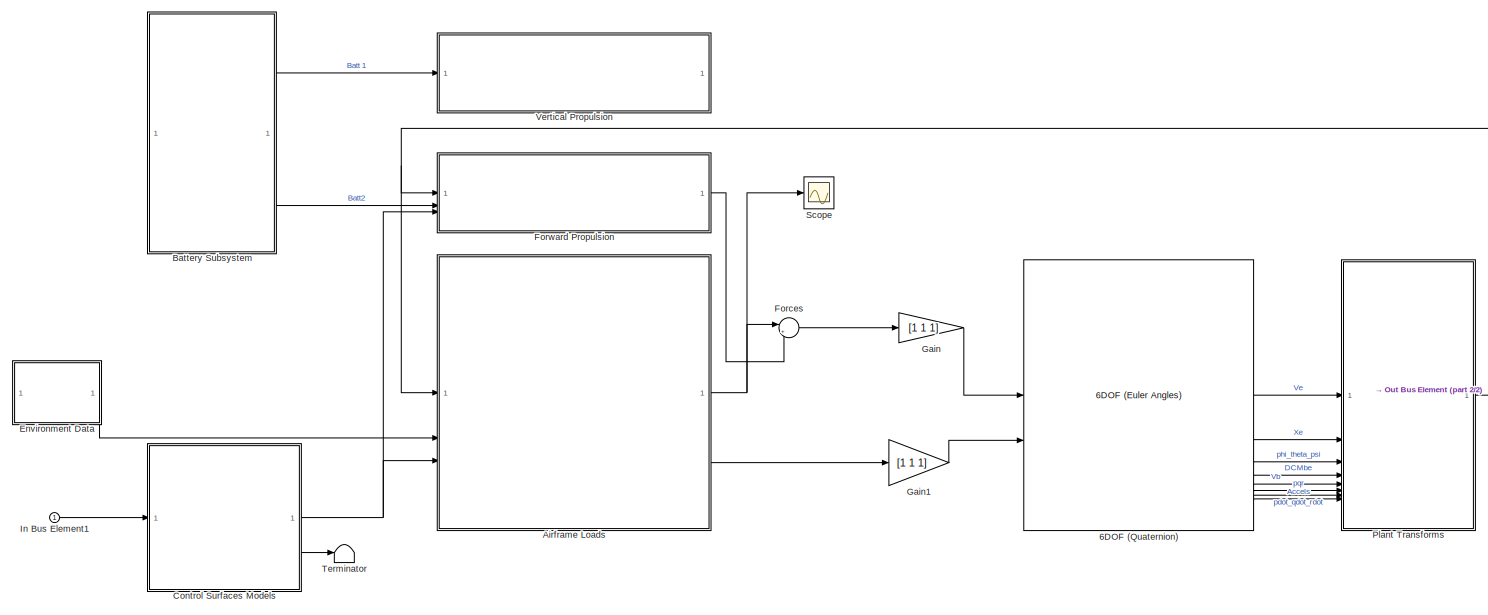
[diagram: root canvas - part 1/2, most of the canvas]
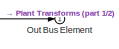
[diagram: root canvas - part 2/2, middle right region]
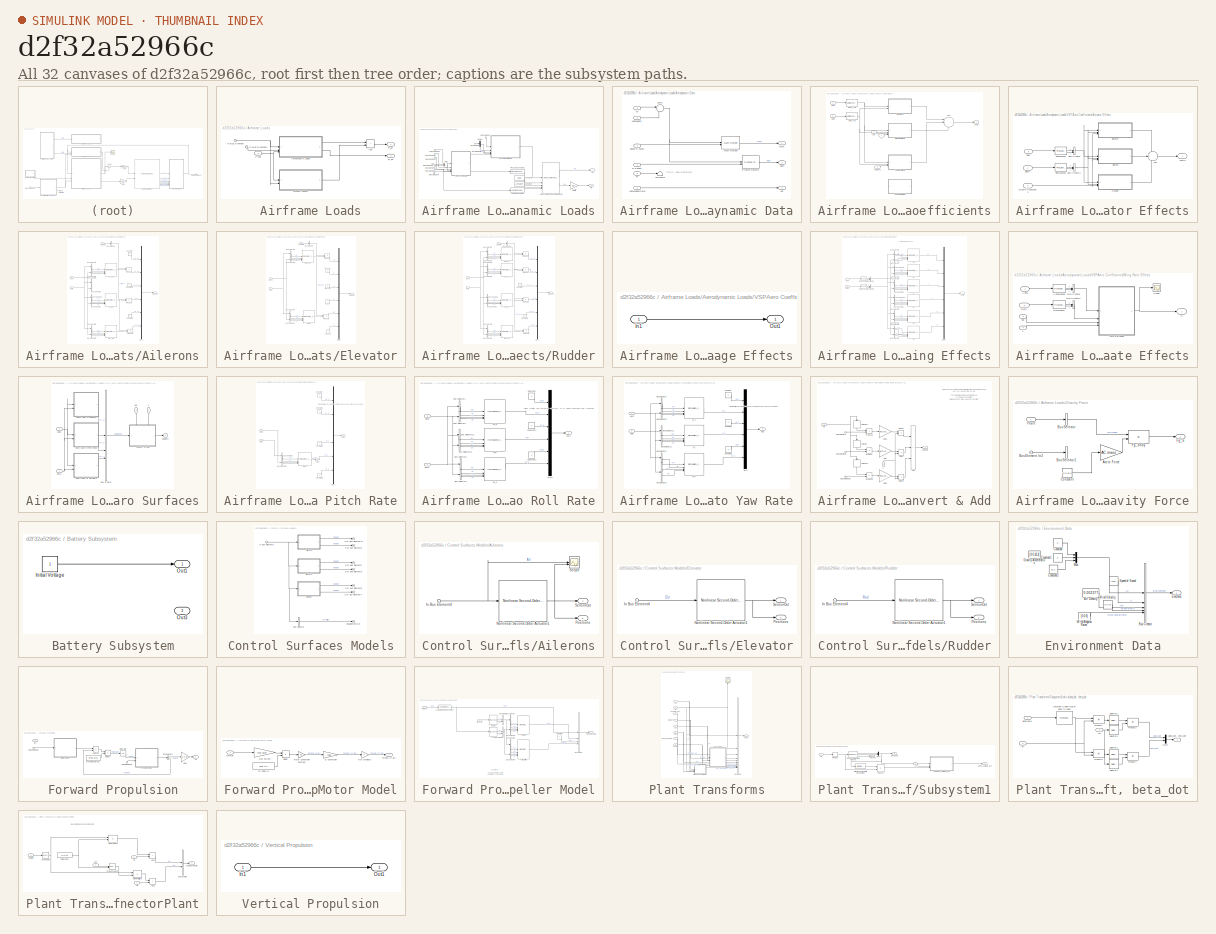
[diagram: thumbnail index - all 32 canvases of the model, root first then tree order]
MODEL slx_d2f32a52966c
KIND model
CONFIG AbsTol = auto
CONFIG EnableMultiTasking = off
CONFIG FixedStep = auto
CONFIG MaxStep = auto
CONFIG MinStep = auto
CONFIG RelTol = 1e-3
CONFIG SampleTimeConstraint = Unconstrained
CONFIG SolverName = VariableStepAuto
CONFIG StartTime = 0.0
CONFIG StopTime = 10.0
BLOCK [Reference] 6DOF (Quaternion)  REF=shared6dof/6DOF (Euler Angles)
  SourceBlock = shared6dof/6DOF (Euler Angles)
  SourceType = 6DOF EoM (Body Axis)
BLOCK [SubSystem] Airframe Loads
BLOCK [Sum] Airframe Loads/Add
  IconShape = rectangular
BLOCK [SubSystem] Airframe Loads/Aerodynamic Loads
BLOCK [Sum] Airframe Loads/Aerodynamic Loads/Add
  IconShape = rectangular
BLOCK [SubSystem] Airframe Loads/Aerodynamic Loads/Aerodynamic Data
BLOCK [Inport] Airframe Loads/Aerodynamic Loads/Aerodynamic Data/Air Density
  Port = 2
BLOCK [Reference] Airframe Loads/Aerodynamic Loads/Aerodynamic Data/Dynamic Pressure  REF=aerolibasang/Dynamic Pressure
  SourceBlock = aerolibasang/Dynamic Pressure
  SourceType = Dynamic Pressure
BLOCK [Outport] Airframe Loads/Aerodynamic Loads/Aerodynamic Data/Mach
  Port = 2
  VectorParamsAs1DForOutWhenUnconnected = off
BLOCK [Reference] Airframe Loads/Aerodynamic Loads/Aerodynamic Data/Mach Number  REF=aerolibasang/Mach Number
  SourceBlock = aerolibasang/Mach Number
  SourceType = Mach Number
BLOCK [Inport] Airframe Loads/Aerodynamic Loads/Aerodynamic Data/Speed of Sound
BLOCK [Sum] Airframe Loads/Aerodynamic Loads/Aerodynamic Data/Sum2
  InputSameDT = on
  Inputs = |+-
  OutDataTypeStr = Inherit: Same as first input
  SaturateOnIntegerOverflow = on
BLOCK [Terminator] Airframe Loads/Aerodynamic Loads/Aerodynamic Data/Terminator
BLOCK [Inport] Airframe Loads/Aerodynamic Loads/Aerodynamic Data/Vb
  Port = 5
  PortDimensions = 3
BLOCK [Inport] Airframe Loads/Aerodynamic Loads/Aerodynamic Data/Ve
  Port = 6
  PortDimensions = 3
BLOCK [Inport] Airframe Loads/Aerodynamic Loads/Aerodynamic Data/WindAngularRates
  Port = 4
  PortDimensions = 3
BLOCK [Inport] Airframe Loads/Aerodynamic Loads/Aerodynamic Data/WindVelocity
  Port = 3
  PortDimensions = 3
BLOCK [Outport] Airframe Loads/Aerodynamic Loads/Aerodynamic Data/pqr 
  VectorParamsAs1DForOutWhenUnconnected = off
BLOCK [Outport] Airframe Loads/Aerodynamic Loads/Aerodynamic Data/qbar
  InitialOutput = 0
  Port = 3
  VectorParamsAs1DForOutWhenUnconnected = off
BLOCK [Reference] Airframe Loads/Aerodynamic Loads/Aerodynamic Forces and Moments  REF=aerolibadyn/Aerodynamic
Forces and Moments 
  SourceBlock = aerolibadyn/Aerodynamic\nForces and Moments
  SourceType = Aerodynamic Forces and Moments
BLOCK [Inport] Airframe Loads/Aerodynamic Loads/BusElementIn
  Port = 3
BLOCK [Inport] Airframe Loads/Aerodynamic Loads/BusElementIn1
  Port = 3
BLOCK [Constant] Airframe Loads/Aerodynamic Loads/Constant
  Value = Aero.Mref
BLOCK [Constant] Airframe Loads/Aerodynamic Loads/Constant1
  Value = AC.CG
BLOCK [Demux] Airframe Loads/Aerodynamic Loads/Demux
  Outputs = 2
BLOCK [Outport] Airframe Loads/Aerodynamic Loads/Fb
  InitialOutput = 0
  VectorParamsAs1DForOutWhenUnconnected = off
BLOCK [Inport] Airframe Loads/Aerodynamic Loads/In Bus Element
  Port = 2
BLOCK [Inport] Airframe Loads/Aerodynamic Loads/In Bus Element1
  Port = 3
BLOCK [Inport] Airframe Loads/Aerodynamic Loads/In Bus Element2
BLOCK [Inport] Airframe Loads/Aerodynamic Loads/In Bus Element3
  Port = 3
BLOCK [Inport] Airframe Loads/Aerodynamic Loads/In Bus Element4
  Port = 3
BLOCK [Inport] Airframe Loads/Aerodynamic Loads/In Bus Element5
BLOCK [Inport] Airframe Loads/Aerodynamic Loads/In Bus Element6
BLOCK [Inport] Airframe Loads/Aerodynamic Loads/In Bus Element7
BLOCK [Reference] Airframe Loads/Aerodynamic Loads/Length Conversion  REF=aerolibconvert2/Length Conversion
  SourceBlock = aerolibconvert2/Length Conversion
  SourceType = Length Conversion
BLOCK [Outport] Airframe Loads/Aerodynamic Loads/Mb
  InitialOutput = 0
  Port = 2
  VectorParamsAs1DForOutWhenUnconnected = off
BLOCK [Reference] Airframe Loads/Aerodynamic Loads/Pressure Conversion  REF=aerolibconvert2/Pressure Conversion
  SourceBlock = aerolibconvert2/Pressure Conversion
  SourceType = Pressure Conversion
BLOCK [SubSystem] Airframe Loads/Aerodynamic Loads/VSPAero Coefficients
BLOCK [SubSystem] Airframe Loads/Aerodynamic Loads/VSPAero Coefficients/Actuator Effects
BLOCK [Inport] Airframe Loads/Aerodynamic Loads/VSPAero Coefficients/Actuator Effects/Actuator Deflections 
  Port = 3
BLOCK [Sum] Airframe Loads/Aerodynamic Loads/VSPAero Coefficients/Actuator Effects/Add
  Inputs = +++
BLOCK [SubSystem] Airframe Loads/Aerodynamic Loads/VSPAero Coefficients/Actuator Effects/Ailerons
BLOCK [Inport] Airframe Loads/Aerodynamic Loads/VSPAero Coefficients/Actuator Effects/Ailerons/Actuators
  Port = 3
BLOCK [Inport] Airframe Loads/Aerodynamic Loads/VSPAero Coefficients/Actuator Effects/Ailerons/Alpha
  NameLocation = top
BLOCK [Inport] Airframe Loads/Aerodynamic Loads/VSPAero Coefficients/Actuator Effects/Ailerons/Beta
  NameLocation = top
  Port = 2
BLOCK [BusSelector] Airframe Loads/Aerodynamic Loads/VSPAero Coefficients/Actuator Effects/Ailerons/Bus Selector
  OutputSignals = Aileron
BLOCK [BusSelector] Airframe Loads/Aerodynamic Loads/VSPAero Coefficients/Actuator Effects/Ailerons/Bus Selector10
  OutputSignals = k,f
BLOCK [BusSelector] Airframe Loads/Aerodynamic Loads/VSPAero Coefficients/Actuator Effects/Ailerons/Bus Selector11
  OutputSignals = k,f
BLOCK [BusSelector] Airframe Loads/Aerodynamic Loads/VSPAero Coefficients/Actuator Effects/Ailerons/Bus Selector12
  OutputSignals = k,f
BLOCK [BusSelector] Airframe Loads/Aerodynamic Loads/VSPAero Coefficients/Actuator Effects/Ailerons/Bus Selector2
  OutputSignals = k,f
BLOCK [BusSelector] Airframe Loads/Aerodynamic Loads/VSPAero Coefficients/Actuator Effects/Ailerons/Bus Selector5
  OutputSignals = k,f
BLOCK [BusSelector] Airframe Loads/Aerodynamic Loads/VSPAero Coefficients/Actuator Effects/Ailerons/Bus Selector6
  OutputSignals = k,f
BLOCK [BusSelector] Airframe Loads/Aerodynamic Loads/VSPAero Coefficients/Actuator Effects/Ailerons/Bus Selector8
  OutputSignals = k,f
BLOCK [BusSelector] Airframe Loads/Aerodynamic Loads/VSPAero Coefficients/Actuator Effects/Ailerons/Bus Selector9
  OutputSignals = k,f
BLOCK [Interpolation_n-D] Airframe Loads/Aerodynamic Loads/VSPAero Coefficients/Actuator Effects/Ailerons/Cc_da
  InputPortMap = u0,u1,u2,u3
  RemoveProtectionIndex = on
  SaturateOnIntegerOverflow = on
  Table = Aero.Cc_da
BLOCK [Interpolation_n-D] Airframe Loads/Aerodynamic Loads/VSPAero Coefficients/Actuator Effects/Ailerons/Cl_da
  InputPortMap = u0,u1,u2,u3
  RemoveProtectionIndex = on
  SaturateOnIntegerOverflow = on
  Table = Aero.Cl_da
BLOCK [Constant] Airframe Loads/Aerodynamic Loads/VSPAero Coefficients/Actuator Effects/Ailerons/Constant
  Value = 0
BLOCK [Constant] Airframe Loads/Aerodynamic Loads/VSPAero Coefficients/Actuator Effects/Ailerons/Constant1
  Value = 0
BLOCK [Constant] Airframe Loads/Aerodynamic Loads/VSPAero Coefficients/Actuator Effects/Ailerons/Constant2
  Value = 0
BLOCK [Mux] Airframe Loads/Aerodynamic Loads/VSPAero Coefficients/Actuator Effects/Ailerons/Mux1
  Inputs = 6
BLOCK [Product] Airframe Loads/Aerodynamic Loads/VSPAero Coefficients/Actuator Effects/Ailerons/Product2
  InputSameDT = on
  OutDataTypeStr = Inherit: Same as first input
  SaturateOnIntegerOverflow = on
BLOCK [Product] Airframe Loads/Aerodynamic Loads/VSPAero Coefficients/Actuator Effects/Ailerons/Product4
  InputSameDT = on
  OutDataTypeStr = Inherit: Same as first input
  SaturateOnIntegerOverflow = on
BLOCK [Product] Airframe Loads/Aerodynamic Loads/VSPAero Coefficients/Actuator Effects/Ailerons/Product8
  InputSameDT = on
  OutDataTypeStr = Inherit: Same as first input
  SaturateOnIntegerOverflow = on
BLOCK [Interpolation_n-D] Airframe Loads/Aerodynamic Loads/VSPAero Coefficients/Actuator Effects/Ailerons/dCn_da
  InputPortMap = u0,u1,u2,u3
  RemoveProtectionIndex = on
  SaturateOnIntegerOverflow = on
  Table = Aero.Cn_da
BLOCK [Outport] Airframe Loads/Aerodynamic Loads/VSPAero Coefficients/Actuator Effects/Ailerons/delCoeff
  VectorParamsAs1DForOutWhenUnconnected = off
BLOCK [Inport] Airframe Loads/Aerodynamic Loads/VSPAero Coefficients/Actuator Effects/Alpha
  Unit = deg
BLOCK [PreLookup] Airframe Loads/Aerodynamic Loads/VSPAero Coefficients/Actuator Effects/AlphaLookup
  BeginIndexSearchUsingPreviousIndexResult = on
  BreakpointsData = Aero.alpha_vec
  ExtrapMethod = Linear
  InputPortMap = u0
BLOCK [Inport] Airframe Loads/Aerodynamic Loads/VSPAero Coefficients/Actuator Effects/Beta
  Port = 2
  Unit = deg
BLOCK [PreLookup] Airframe Loads/Aerodynamic Loads/VSPAero Coefficients/Actuator Effects/BetaLookup
  BeginIndexSearchUsingPreviousIndexResult = on
  BreakpointsData = Aero.beta_vec
  ExtrapMethod = Linear
  InputPortMap = u0
BLOCK [BusCreator] Airframe Loads/Aerodynamic Loads/VSPAero Coefficients/Actuator Effects/Bus Creator
  DisplayOption = bar
  InheritFromInputs = on
  Inputs = 2
BLOCK [BusCreator] Airframe Loads/Aerodynamic Loads/VSPAero Coefficients/Actuator Effects/Bus Creator1
  DisplayOption = bar
  InheritFromInputs = on
  Inputs = 2
BLOCK [SubSystem] Airframe Loads/Aerodynamic Loads/VSPAero Coefficients/Actuator Effects/Elevator
BLOCK [Inport] Airframe Loads/Aerodynamic Loads/VSPAero Coefficients/Actuator Effects/Elevator/Actuators
  Port = 3
BLOCK [Inport] Airframe Loads/Aerodynamic Loads/VSPAero Coefficients/Actuator Effects/Elevator/Alpha
  NameLocation = top
BLOCK [Inport] Airframe Loads/Aerodynamic Loads/VSPAero Coefficients/Actuator Effects/Elevator/Beta
  NameLocation = top
  Port = 2
BLOCK [BusSelector] Airframe Loads/Aerodynamic Loads/VSPAero Coefficients/Actuator Effects/Elevator/Bus Selector
  OutputSignals = Elevator
BLOCK [BusSelector] Airframe Loads/Aerodynamic Loads/VSPAero Coefficients/Actuator Effects/Elevator/Bus Selector1
  OutputSignals = k,f
BLOCK [BusSelector] Airframe Loads/Aerodynamic Loads/VSPAero Coefficients/Actuator Effects/Elevator/Bus Selector3
  OutputSignals = k,f
BLOCK [BusSelector] Airframe Loads/Aerodynamic Loads/VSPAero Coefficients/Actuator Effects/Elevator/Bus Selector4
  OutputSignals = k,f
BLOCK [BusSelector] Airframe Loads/Aerodynamic Loads/VSPAero Coefficients/Actuator Effects/Elevator/Bus Selector7
  OutputSignals = k,f
BLOCK [Mux] Airframe Loads/Aerodynamic Loads/VSPAero Coefficients/Actuator Effects/Elevator/Mux1
  Inputs = 6
BLOCK [Product] Airframe Loads/Aerodynamic Loads/VSPAero Coefficients/Actuator Effects/Elevator/Product1
  InputSameDT = on
  OutDataTypeStr = Inherit: Same as first input
  SaturateOnIntegerOverflow = on
BLOCK [Product] Airframe Loads/Aerodynamic Loads/VSPAero Coefficients/Actuator Effects/Elevator/Product3
  InputSameDT = on
  OutDataTypeStr = Inherit: Same as first input
  SaturateOnIntegerOverflow = on
BLOCK [Interpolation_n-D] Airframe Loads/Aerodynamic Loads/VSPAero Coefficients/Actuator Effects/Elevator/dCD_de
  InputPortMap = u0,u1,u2,u3
  RemoveProtectionIndex = on
  SaturateOnIntegerOverflow = on
  Table = Aero.CD_de
BLOCK [Constant] Airframe Loads/Aerodynamic Loads/VSPAero Coefficients/Actuator Effects/Elevator/dCL_de
  Value = 0
BLOCK [Interpolation_n-D] Airframe Loads/Aerodynamic Loads/VSPAero Coefficients/Actuator Effects/Elevator/dCMy
  InputPortMap = u0,u1,u2,u3
  RemoveProtectionIndex = on
  SaturateOnIntegerOverflow = on
  Table = Aero.Cm_de
BLOCK [Constant] Airframe Loads/Aerodynamic Loads/VSPAero Coefficients/Actuator Effects/Elevator/dCc_de
  Value = 0
BLOCK [Constant] Airframe Loads/Aerodynamic Loads/VSPAero Coefficients/Actuator Effects/Elevator/dCl_de
  Value = 0
BLOCK [Constant] Airframe Loads/Aerodynamic Loads/VSPAero Coefficients/Actuator Effects/Elevator/dCn_de
  Value = 0
BLOCK [Outport] Airframe Loads/Aerodynamic Loads/VSPAero Coefficients/Actuator Effects/Elevator/delCoeff
  VectorParamsAs1DForOutWhenUnconnected = off
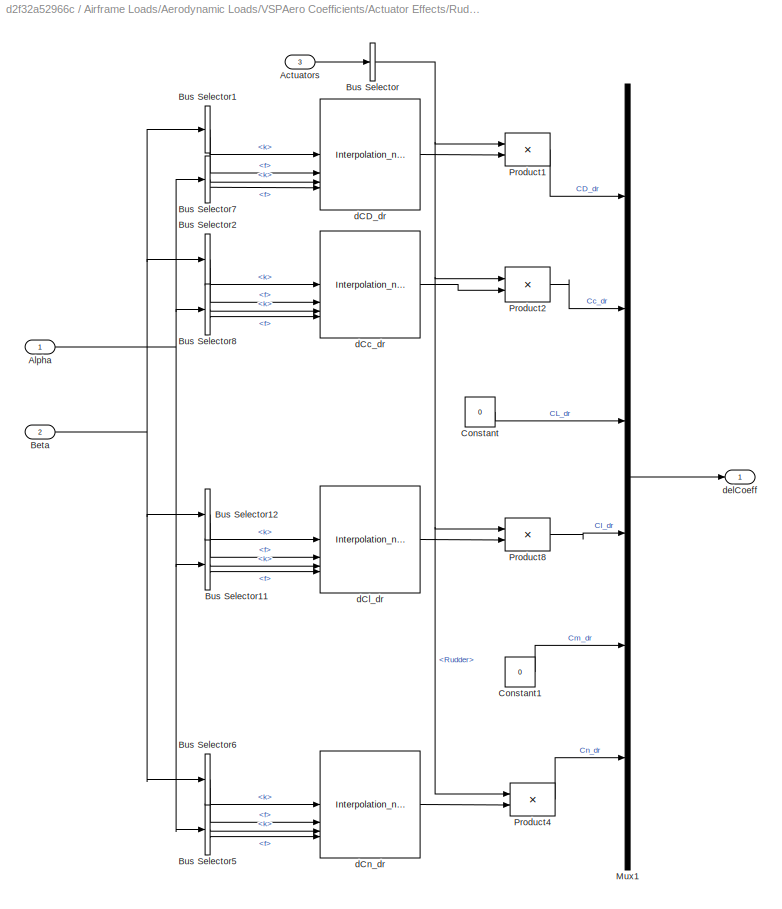
BLOCK [SubSystem] Airframe Loads/Aerodynamic Loads/VSPAero Coefficients/Actuator Effects/Rudder
BLOCK [Inport] Airframe Loads/Aerodynamic Loads/VSPAero Coefficients/Actuator Effects/Rudder/Actuators
  Port = 3
BLOCK [Inport] Airframe Loads/Aerodynamic Loads/VSPAero Coefficients/Actuator Effects/Rudder/Alpha
  NameLocation = top
BLOCK [Inport] Airframe Loads/Aerodynamic Loads/VSPAero Coefficients/Actuator Effects/Rudder/Beta
  NameLocation = top
  Port = 2
BLOCK [BusSelector] Airframe Loads/Aerodynamic Loads/VSPAero Coefficients/Actuator Effects/Rudder/Bus Selector
  OutputSignals = Rudder
BLOCK [BusSelector] Airframe Loads/Aerodynamic Loads/VSPAero Coefficients/Actuator Effects/Rudder/Bus Selector1
  OutputSignals = k,f
BLOCK [BusSelector] Airframe Loads/Aerodynamic Loads/VSPAero Coefficients/Actuator Effects/Rudder/Bus Selector11
  OutputSignals = k,f
BLOCK [BusSelector] Airframe Loads/Aerodynamic Loads/VSPAero Coefficients/Actuator Effects/Rudder/Bus Selector12
  OutputSignals = k,f
BLOCK [BusSelector] Airframe Loads/Aerodynamic Loads/VSPAero Coefficients/Actuator Effects/Rudder/Bus Selector2
  OutputSignals = k,f
BLOCK [BusSelector] Airframe Loads/Aerodynamic Loads/VSPAero Coefficients/Actuator Effects/Rudder/Bus Selector5
  OutputSignals = k,f
BLOCK [BusSelector] Airframe Loads/Aerodynamic Loads/VSPAero Coefficients/Actuator Effects/Rudder/Bus Selector6
  OutputSignals = k,f
BLOCK [BusSelector] Airframe Loads/Aerodynamic Loads/VSPAero Coefficients/Actuator Effects/Rudder/Bus Selector7
  OutputSignals = k,f
BLOCK [BusSelector] Airframe Loads/Aerodynamic Loads/VSPAero Coefficients/Actuator Effects/Rudder/Bus Selector8
  OutputSignals = k,f
BLOCK [Constant] Airframe Loads/Aerodynamic Loads/VSPAero Coefficients/Actuator Effects/Rudder/Constant
  Value = 0
BLOCK [Constant] Airframe Loads/Aerodynamic Loads/VSPAero Coefficients/Actuator Effects/Rudder/Constant1
  Value = 0
BLOCK [Mux] Airframe Loads/Aerodynamic Loads/VSPAero Coefficients/Actuator Effects/Rudder/Mux1
  Inputs = 6
BLOCK [Product] Airframe Loads/Aerodynamic Loads/VSPAero Coefficients/Actuator Effects/Rudder/Product1
  InputSameDT = on
  OutDataTypeStr = Inherit: Same as first input
  SaturateOnIntegerOverflow = on
BLOCK [Product] Airframe Loads/Aerodynamic Loads/VSPAero Coefficients/Actuator Effects/Rudder/Product2
  InputSameDT = on
  OutDataTypeStr = Inherit: Same as first input
  SaturateOnIntegerOverflow = on
BLOCK [Product] Airframe Loads/Aerodynamic Loads/VSPAero Coefficients/Actuator Effects/Rudder/Product4
  InputSameDT = on
  OutDataTypeStr = Inherit: Same as first input
  SaturateOnIntegerOverflow = on
BLOCK [Product] Airframe Loads/Aerodynamic Loads/VSPAero Coefficients/Actuator Effects/Rudder/Product8
  InputSameDT = on
  OutDataTypeStr = Inherit: Same as first input
  SaturateOnIntegerOverflow = on
BLOCK [Interpolation_n-D] Airframe Loads/Aerodynamic Loads/VSPAero Coefficients/Actuator Effects/Rudder/dCD_dr
  InputPortMap = u0,u1,u2,u3
  RemoveProtectionIndex = on
  SaturateOnIntegerOverflow = on
  Table = Aero.CD_dr
BLOCK [Interpolation_n-D] Airframe Loads/Aerodynamic Loads/VSPAero Coefficients/Actuator Effects/Rudder/dCc_dr
  InputPortMap = u0,u1,u2,u3
  RemoveProtectionIndex = on
  SaturateOnIntegerOverflow = on
  Table = Aero.Cc_dr
BLOCK [Interpolation_n-D] Airframe Loads/Aerodynamic Loads/VSPAero Coefficients/Actuator Effects/Rudder/dCl_dr
  InputPortMap = u0,u1,u2,u3
  RemoveProtectionIndex = on
  SaturateOnIntegerOverflow = on
  Table = Aero.Cl_dr
BLOCK [Interpolation_n-D] Airframe Loads/Aerodynamic Loads/VSPAero Coefficients/Actuator Effects/Rudder/dCn_dr
  InputPortMap = u0,u1,u2,u3
  RemoveProtectionIndex = on
  SaturateOnIntegerOverflow = on
  Table = Aero.Cn_dr
BLOCK [Outport] Airframe Loads/Aerodynamic Loads/VSPAero Coefficients/Actuator Effects/Rudder/delCoeff
  VectorParamsAs1DForOutWhenUnconnected = off
BLOCK [Outport] Airframe Loads/Aerodynamic Loads/VSPAero Coefficients/Actuator Effects/coeffs
  InitialOutput = 0
  VectorParamsAs1DForOutWhenUnconnected = off
BLOCK [Inport] Airframe Loads/Aerodynamic Loads/VSPAero Coefficients/Actuators
BLOCK [Inport] Airframe Loads/Aerodynamic Loads/VSPAero Coefficients/Alpha
  Port = 2
  Unit = rad
BLOCK [Inport] Airframe Loads/Aerodynamic Loads/VSPAero Coefficients/Beta
  Port = 3
  Unit = rad
BLOCK [Outport] Airframe Loads/Aerodynamic Loads/VSPAero Coefficients/Coeff
  InitialOutput = 0
  VectorParamsAs1DForOutWhenUnconnected = off
BLOCK [SubSystem] Airframe Loads/Aerodynamic Loads/VSPAero Coefficients/Fuselage Effects
BLOCK [Inport] Airframe Loads/Aerodynamic Loads/VSPAero Coefficients/Fuselage Effects/In1
BLOCK [Outport] Airframe Loads/Aerodynamic Loads/VSPAero Coefficients/Fuselage Effects/Out1
BLOCK [Sum] Airframe Loads/Aerodynamic Loads/VSPAero Coefficients/Sum
  Inputs = |+++
BLOCK [Inport] Airframe Loads/Aerodynamic Loads/VSPAero Coefficients/V
  Port = 4
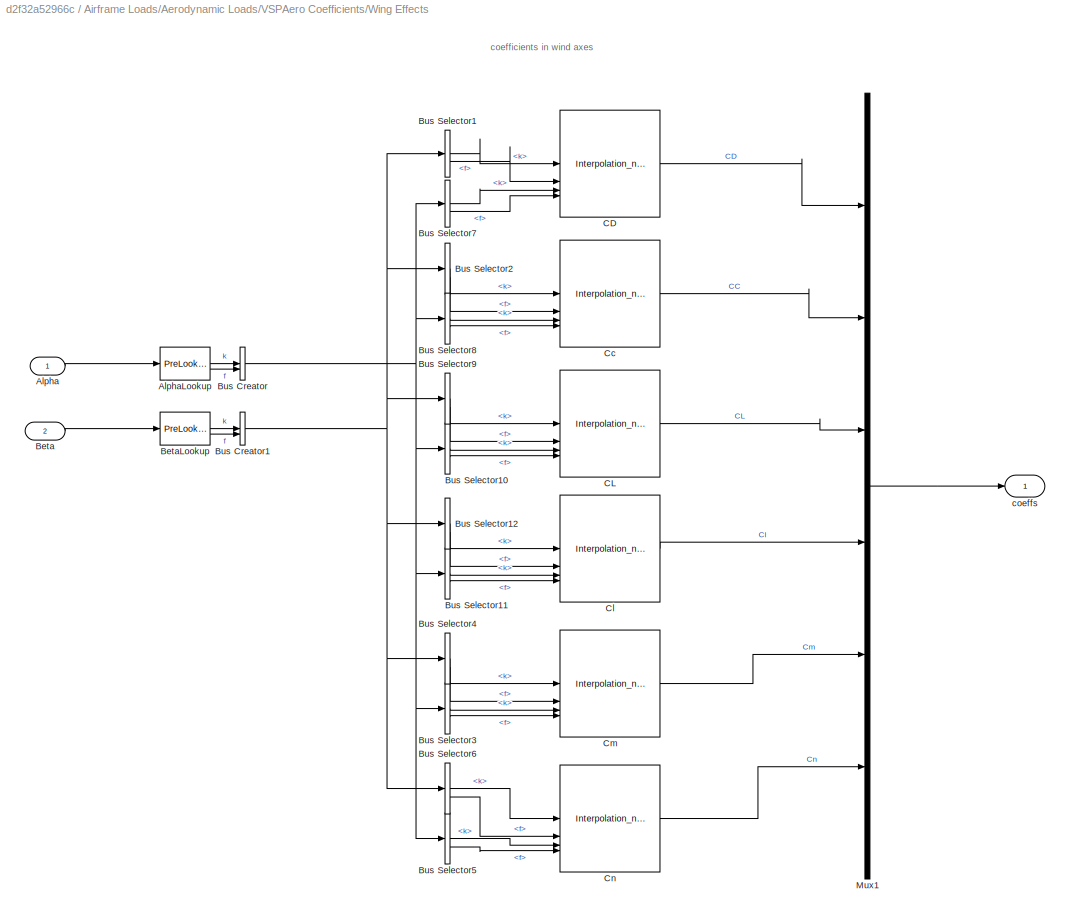
BLOCK [SubSystem] Airframe Loads/Aerodynamic Loads/VSPAero Coefficients/Wing Effects
BLOCK [Inport] Airframe Loads/Aerodynamic Loads/VSPAero Coefficients/Wing Effects/Alpha
  Unit = deg
BLOCK [PreLookup] Airframe Loads/Aerodynamic Loads/VSPAero Coefficients/Wing Effects/AlphaLookup
  BeginIndexSearchUsingPreviousIndexResult = on
  BreakpointsData = Aero.alpha_vec
  ExtrapMethod = Linear
  InputPortMap = u0
BLOCK [Inport] Airframe Loads/Aerodynamic Loads/VSPAero Coefficients/Wing Effects/Beta
  Port = 2
  Unit = deg
BLOCK [PreLookup] Airframe Loads/Aerodynamic Loads/VSPAero Coefficients/Wing Effects/BetaLookup
  BeginIndexSearchUsingPreviousIndexResult = on
  BreakpointsData = Aero.beta_vec
  ExtrapMethod = Linear
  InputPortMap = u0
BLOCK [BusCreator] Airframe Loads/Aerodynamic Loads/VSPAero Coefficients/Wing Effects/Bus Creator
  DisplayOption = bar
  InheritFromInputs = on
  Inputs = 2
BLOCK [BusCreator] Airframe Loads/Aerodynamic Loads/VSPAero Coefficients/Wing Effects/Bus Creator1
  DisplayOption = bar
  InheritFromInputs = on
  Inputs = 2
BLOCK [BusSelector] Airframe Loads/Aerodynamic Loads/VSPAero Coefficients/Wing Effects/Bus Selector1
  OutputSignals = k,f
BLOCK [BusSelector] Airframe Loads/Aerodynamic Loads/VSPAero Coefficients/Wing Effects/Bus Selector10
  OutputSignals = k,f
BLOCK [BusSelector] Airframe Loads/Aerodynamic Loads/VSPAero Coefficients/Wing Effects/Bus Selector11
  OutputSignals = k,f
BLOCK [BusSelector] Airframe Loads/Aerodynamic Loads/VSPAero Coefficients/Wing Effects/Bus Selector12
  OutputSignals = k,f
BLOCK [BusSelector] Airframe Loads/Aerodynamic Loads/VSPAero Coefficients/Wing Effects/Bus Selector2
  OutputSignals = k,f
BLOCK [BusSelector] Airframe Loads/Aerodynamic Loads/VSPAero Coefficients/Wing Effects/Bus Selector3
  OutputSignals = k,f
BLOCK [BusSelector] Airframe Loads/Aerodynamic Loads/VSPAero Coefficients/Wing Effects/Bus Selector4
  OutputSignals = k,f
BLOCK [BusSelector] Airframe Loads/Aerodynamic Loads/VSPAero Coefficients/Wing Effects/Bus Selector5
  OutputSignals = k,f
BLOCK [BusSelector] Airframe Loads/Aerodynamic Loads/VSPAero Coefficients/Wing Effects/Bus Selector6
  OutputSignals = k,f
BLOCK [BusSelector] Airframe Loads/Aerodynamic Loads/VSPAero Coefficients/Wing Effects/Bus Selector7
  OutputSignals = k,f
BLOCK [BusSelector] Airframe Loads/Aerodynamic Loads/VSPAero Coefficients/Wing Effects/Bus Selector8
  OutputSignals = k,f
BLOCK [BusSelector] Airframe Loads/Aerodynamic Loads/VSPAero Coefficients/Wing Effects/Bus Selector9
  OutputSignals = k,f
BLOCK [Interpolation_n-D] Airframe Loads/Aerodynamic Loads/VSPAero Coefficients/Wing Effects/CD
  InputPortMap = u0,u1,u2,u3
  RemoveProtectionIndex = on
  SaturateOnIntegerOverflow = on
  Table = Aero.CD
BLOCK [Interpolation_n-D] Airframe Loads/Aerodynamic Loads/VSPAero Coefficients/Wing Effects/CL
  InputPortMap = u0,u1,u2,u3
  RemoveProtectionIndex = on
  SaturateOnIntegerOverflow = on
  Table = Aero.CL
BLOCK [Interpolation_n-D] Airframe Loads/Aerodynamic Loads/VSPAero Coefficients/Wing Effects/Cc
  InputPortMap = u0,u1,u2,u3
  RemoveProtectionIndex = on
  SaturateOnIntegerOverflow = on
  Table = Aero.Cc
BLOCK [Interpolation_n-D] Airframe Loads/Aerodynamic Loads/VSPAero Coefficients/Wing Effects/Cl
  InputPortMap = u0,u1,u2,u3
  RemoveProtectionIndex = on
  SaturateOnIntegerOverflow = on
  Table = Aero.Cl
BLOCK [Interpolation_n-D] Airframe Loads/Aerodynamic Loads/VSPAero Coefficients/Wing Effects/Cm
  InputPortMap = u0,u1,u2,u3
  RemoveProtectionIndex = on
  SaturateOnIntegerOverflow = on
  Table = Aero.Cm
BLOCK [Interpolation_n-D] Airframe Loads/Aerodynamic Loads/VSPAero Coefficients/Wing Effects/Cn
  InputPortMap = u0,u1,u2,u3
  RemoveProtectionIndex = on
  SaturateOnIntegerOverflow = on
  Table = Aero.Cn
BLOCK [Mux] Airframe Loads/Aerodynamic Loads/VSPAero Coefficients/Wing Effects/Mux1
  Inputs = 6
BLOCK [Outport] Airframe Loads/Aerodynamic Loads/VSPAero Coefficients/Wing Effects/coeffs
  InitialOutput = 0
  VectorParamsAs1DForOutWhenUnconnected = off
BLOCK [SubSystem] Airframe Loads/Aerodynamic Loads/VSPAero Coefficients/Wing Rate Effects
BLOCK [SubSystem] Airframe Loads/Aerodynamic Loads/VSPAero Coefficients/Wing Rate Effects/Aero Surfaces
BLOCK [Inport] Airframe Loads/Aerodynamic Loads/VSPAero Coefficients/Wing Rate Effects/Aero Surfaces/Alpha
  NameLocation = top
BLOCK [Inport] Airframe Loads/Aerodynamic Loads/VSPAero Coefficients/Wing Rate Effects/Aero Surfaces/Beta
  NameLocation = top
  Port = 2
BLOCK [BusCreator] Airframe Loads/Aerodynamic Loads/VSPAero Coefficients/Wing Rate Effects/Aero Surfaces/Bus Creator
  DisplayOption = bar
  InheritFromInputs = on
  Inputs = 3
BLOCK [SubSystem] Airframe Loads/Aerodynamic Loads/VSPAero Coefficients/Wing Rate Effects/Aero Surfaces/Coefs Due to Pitch Rate
BLOCK [Inport] Airframe Loads/Aerodynamic Loads/VSPAero Coefficients/Wing Rate Effects/Aero Surfaces/Coefs Due to Pitch Rate/Alpha
BLOCK [Inport] Airframe Loads/Aerodynamic Loads/VSPAero Coefficients/Wing Rate Effects/Aero Surfaces/Coefs Due to Pitch Rate/Beta
  Port = 2
BLOCK [BusSelector] Airframe Loads/Aerodynamic Loads/VSPAero Coefficients/Wing Rate Effects/Aero Surfaces/Coefs Due to Pitch Rate/Bus Selector11
  OutputSignals = k,f
BLOCK [BusSelector] Airframe Loads/Aerodynamic Loads/VSPAero Coefficients/Wing Rate Effects/Aero Surfaces/Coefs Due to Pitch Rate/Bus Selector12
  OutputSignals = k,f
BLOCK [Interpolation_n-D] Airframe Loads/Aerodynamic Loads/VSPAero Coefficients/Wing Rate Effects/Aero Surfaces/Coefs Due to Pitch Rate/Cm_q
  ExtrapMethod = Clip
  InputPortMap = u0,u1,u2,u3
  RemoveProtectionIndex = on
  SaturateOnIntegerOverflow = on
  Table = Aero.Cm_q
BLOCK [Constant] Airframe Loads/Aerodynamic Loads/VSPAero Coefficients/Wing Rate Effects/Aero Surfaces/Coefs Due to Pitch Rate/Constant
  Value = 0
BLOCK [Constant] Airframe Loads/Aerodynamic Loads/VSPAero Coefficients/Wing Rate Effects/Aero Surfaces/Coefs Due to Pitch Rate/Constant1
  Value = 0
BLOCK [Constant] Airframe Loads/Aerodynamic Loads/VSPAero Coefficients/Wing Rate Effects/Aero Surfaces/Coefs Due to Pitch Rate/Constant2
  Value = 0
BLOCK [Constant] Airframe Loads/Aerodynamic Loads/VSPAero Coefficients/Wing Rate Effects/Aero Surfaces/Coefs Due to Pitch Rate/Constant3
  Value = 0
BLOCK [Gain] Airframe Loads/Aerodynamic Loads/VSPAero Coefficients/Wing Rate Effects/Aero Surfaces/Coefs Due to Pitch Rate/Gain
  Commented = through
  Gain = 0.1
BLOCK [Mux] Airframe Loads/Aerodynamic Loads/VSPAero Coefficients/Wing Rate Effects/Aero Surfaces/Coefs Due to Pitch Rate/Mux1
  Inputs = 6
BLOCK [Outport] Airframe Loads/Aerodynamic Loads/VSPAero Coefficients/Wing Rate Effects/Aero Surfaces/Coefs Due to Pitch Rate/Out1
BLOCK [SubSystem] Airframe Loads/Aerodynamic Loads/VSPAero Coefficients/Wing Rate Effects/Aero Surfaces/Coefs Due to Roll Rate
BLOCK [Inport] Airframe Loads/Aerodynamic Loads/VSPAero Coefficients/Wing Rate Effects/Aero Surfaces/Coefs Due to Roll Rate/Alpha
BLOCK [Inport] Airframe Loads/Aerodynamic Loads/VSPAero Coefficients/Wing Rate Effects/Aero Surfaces/Coefs Due to Roll Rate/Beta
  Port = 2
BLOCK [BusSelector] Airframe Loads/Aerodynamic Loads/VSPAero Coefficients/Wing Rate Effects/Aero Surfaces/Coefs Due to Roll Rate/Bus Selector1
  OutputSignals = k,f
BLOCK [BusSelector] Airframe Loads/Aerodynamic Loads/VSPAero Coefficients/Wing Rate Effects/Aero Surfaces/Coefs Due to Roll Rate/Bus Selector11
  OutputSignals = k,f
BLOCK [BusSelector] Airframe Loads/Aerodynamic Loads/VSPAero Coefficients/Wing Rate Effects/Aero Surfaces/Coefs Due to Roll Rate/Bus Selector12
  OutputSignals = k,f
BLOCK [BusSelector] Airframe Loads/Aerodynamic Loads/VSPAero Coefficients/Wing Rate Effects/Aero Surfaces/Coefs Due to Roll Rate/Bus Selector5
  OutputSignals = k,f
BLOCK [BusSelector] Airframe Loads/Aerodynamic Loads/VSPAero Coefficients/Wing Rate Effects/Aero Surfaces/Coefs Due to Roll Rate/Bus Selector6
  OutputSignals = k,f
BLOCK [BusSelector] Airframe Loads/Aerodynamic Loads/VSPAero Coefficients/Wing Rate Effects/Aero Surfaces/Coefs Due to Roll Rate/Bus Selector8
  OutputSignals = k,f
BLOCK [Interpolation_n-D] Airframe Loads/Aerodynamic Loads/VSPAero Coefficients/Wing Rate Effects/Aero Surfaces/Coefs Due to Roll Rate/Cc_p
  ExtrapMethod = Clip
  InputPortMap = u0,u1,u2,u3
  RemoveProtectionIndex = on
  SaturateOnIntegerOverflow = on
  Table = Aero.Cc_p
BLOCK [Interpolation_n-D] Airframe Loads/Aerodynamic Loads/VSPAero Coefficients/Wing Rate Effects/Aero Surfaces/Coefs Due to Roll Rate/Cl_p
  ExtrapMethod = Clip
  InputPortMap = u0,u1,u2,u3
  RemoveProtectionIndex = on
  SaturateOnIntegerOverflow = on
  Table = Aero.Cl_p
BLOCK [Interpolation_n-D] Airframe Loads/Aerodynamic Loads/VSPAero Coefficients/Wing Rate Effects/Aero Surfaces/Coefs Due to Roll Rate/Cn_p
  ExtrapMethod = Clip
  InputPortMap = u0,u1,u2,u3
  RemoveProtectionIndex = on
  SaturateOnIntegerOverflow = on
  Table = Aero.Cn_p
BLOCK [Constant] Airframe Loads/Aerodynamic Loads/VSPAero Coefficients/Wing Rate Effects/Aero Surfaces/Coefs Due to Roll Rate/Constant
  Value = 0
BLOCK [Constant] Airframe Loads/Aerodynamic Loads/VSPAero Coefficients/Wing Rate Effects/Aero Surfaces/Coefs Due to Roll Rate/Constant1
  Value = 0
BLOCK [Constant] Airframe Loads/Aerodynamic Loads/VSPAero Coefficients/Wing Rate Effects/Aero Surfaces/Coefs Due to Roll Rate/Constant2
  Value = 0
BLOCK [Mux] Airframe Loads/Aerodynamic Loads/VSPAero Coefficients/Wing Rate Effects/Aero Surfaces/Coefs Due to Roll Rate/Mux1
  Inputs = 6
BLOCK [Outport] Airframe Loads/Aerodynamic Loads/VSPAero Coefficients/Wing Rate Effects/Aero Surfaces/Coefs Due to Roll Rate/Out1
BLOCK [SubSystem] Airframe Loads/Aerodynamic Loads/VSPAero Coefficients/Wing Rate Effects/Aero Surfaces/Coefs Due to Yaw Rate
BLOCK [Inport] Airframe Loads/Aerodynamic Loads/VSPAero Coefficients/Wing Rate Effects/Aero Surfaces/Coefs Due to Yaw Rate/Alpha
BLOCK [Inport] Airframe Loads/Aerodynamic Loads/VSPAero Coefficients/Wing Rate Effects/Aero Surfaces/Coefs Due to Yaw Rate/Beta
  Port = 2
BLOCK [BusSelector] Airframe Loads/Aerodynamic Loads/VSPAero Coefficients/Wing Rate Effects/Aero Surfaces/Coefs Due to Yaw Rate/Bus Selector1
  OutputSignals = k,f
BLOCK [BusSelector] Airframe Loads/Aerodynamic Loads/VSPAero Coefficients/Wing Rate Effects/Aero Surfaces/Coefs Due to Yaw Rate/Bus Selector11
  OutputSignals = k,f
BLOCK [BusSelector] Airframe Loads/Aerodynamic Loads/VSPAero Coefficients/Wing Rate Effects/Aero Surfaces/Coefs Due to Yaw Rate/Bus Selector12
  OutputSignals = k,f
BLOCK [BusSelector] Airframe Loads/Aerodynamic Loads/VSPAero Coefficients/Wing Rate Effects/Aero Surfaces/Coefs Due to Yaw Rate/Bus Selector2
  OutputSignals = k,f
BLOCK [BusSelector] Airframe Loads/Aerodynamic Loads/VSPAero Coefficients/Wing Rate Effects/Aero Surfaces/Coefs Due to Yaw Rate/Bus Selector5
  OutputSignals = k,f
BLOCK [BusSelector] Airframe Loads/Aerodynamic Loads/VSPAero Coefficients/Wing Rate Effects/Aero Surfaces/Coefs Due to Yaw Rate/Bus Selector8
  OutputSignals = k,f
BLOCK [Interpolation_n-D] Airframe Loads/Aerodynamic Loads/VSPAero Coefficients/Wing Rate Effects/Aero Surfaces/Coefs Due to Yaw Rate/Cc_r
  ExtrapMethod = Clip
  InputPortMap = u0,u1,u2,u3
  RemoveProtectionIndex = on
  SaturateOnIntegerOverflow = on
  Table = Aero.Cc_r
BLOCK [Interpolation_n-D] Airframe Loads/Aerodynamic Loads/VSPAero Coefficients/Wing Rate Effects/Aero Surfaces/Coefs Due to Yaw Rate/Cl_r
  ExtrapMethod = Clip
  InputPortMap = u0,u1,u2,u3
  RemoveProtectionIndex = on
  SaturateOnIntegerOverflow = on
  Table = Aero.Cl_r
BLOCK [Interpolation_n-D] Airframe Loads/Aerodynamic Loads/VSPAero Coefficients/Wing Rate Effects/Aero Surfaces/Coefs Due to Yaw Rate/Cn_r
  ExtrapMethod = Clip
  InputPortMap = u0,u1,u2,u3
  RemoveProtectionIndex = on
  SaturateOnIntegerOverflow = on
  Table = Aero.Cn_r
BLOCK [Constant] Airframe Loads/Aerodynamic Loads/VSPAero Coefficients/Wing Rate Effects/Aero Surfaces/Coefs Due to Yaw Rate/Constant
  Value = 0
BLOCK [Constant] Airframe Loads/Aerodynamic Loads/VSPAero Coefficients/Wing Rate Effects/Aero Surfaces/Coefs Due to Yaw Rate/Constant1
  Value = 0
BLOCK [Constant] Airframe Loads/Aerodynamic Loads/VSPAero Coefficients/Wing Rate Effects/Aero Surfaces/Coefs Due to Yaw Rate/Constant2
  Value = 0
BLOCK [Mux] Airframe Loads/Aerodynamic Loads/VSPAero Coefficients/Wing Rate Effects/Aero Surfaces/Coefs Due to Yaw Rate/Mux1
  Inputs = 6
BLOCK [Outport] Airframe Loads/Aerodynamic Loads/VSPAero Coefficients/Wing Rate Effects/Aero Surfaces/Coefs Due to Yaw Rate/Out1
BLOCK [SubSystem] Airframe Loads/Aerodynamic Loads/VSPAero Coefficients/Wing Rate Effects/Aero Surfaces/Convert & Add
  PortSchema = {"entries":[{"content":{"sides":[{"content":{"connectorIds":["In1"]},"type":"ConnectorPlacement.EquallySpacedRectSide","uuid":"b8013de1-6e73-47c3-a52d-200a37bea422"},{"content":{"connectorIds":["Out1"],"side":"RIGHT"},"type":"ConnectorPlacement.EquallySpacedRectSide","uuid":"fcf5ea14-4050-433a-82d6-0b7656ed6099"},{"content":{"connectorIds":["In2","In3"],"side":"TOP"},"type":"ConnectorPlacement.Equ...<+395ch>
BLOCK [Sum] Airframe Loads/Aerodynamic Loads/VSPAero Coefficients/Wing Rate Effects/Aero Surfaces/Convert & Add/Add
  IconShape = rectangular
  Inputs = +++
BLOCK [Product] Airframe Loads/Aerodynamic Loads/VSPAero Coefficients/Wing Rate Effects/Aero Surfaces/Convert & Add/Divide
  Inputs = */
BLOCK [Product] Airframe Loads/Aerodynamic Loads/VSPAero Coefficients/Wing Rate Effects/Aero Surfaces/Convert & Add/Divide1
  Inputs = */
BLOCK [Product] Airframe Loads/Aerodynamic Loads/VSPAero Coefficients/Wing Rate Effects/Aero Surfaces/Convert & Add/Divide2
  Inputs = */
BLOCK [Gain] Airframe Loads/Aerodynamic Loads/VSPAero Coefficients/Wing Rate Effects/Aero Surfaces/Convert & Add/Gain
  Gain = Aero.Cref/2
BLOCK [Gain] Airframe Loads/Aerodynamic Loads/VSPAero Coefficients/Wing Rate Effects/Aero Surfaces/Convert & Add/Gain1
  Gain = Aero.bref/2
BLOCK [Gain] Airframe Loads/Aerodynamic Loads/VSPAero Coefficients/Wing Rate Effects/Aero Surfaces/Convert & Add/Gain2
  Gain = Aero.bref/2
BLOCK [Inport] Airframe Loads/Aerodynamic Loads/VSPAero Coefficients/Wing Rate Effects/Aero Surfaces/Convert & Add/In Bus Element
BLOCK [Inport] Airframe Loads/Aerodynamic Loads/VSPAero Coefficients/Wing Rate Effects/Aero Surfaces/Convert & Add/In Bus Element1
BLOCK [Inport] Airframe Loads/Aerodynamic Loads/VSPAero Coefficients/Wing Rate Effects/Aero Surfaces/Convert & Add/In Bus Element2
BLOCK [Product] Airframe Loads/Aerodynamic Loads/VSPAero Coefficients/Wing Rate Effects/Aero Surfaces/Convert & Add/Product
BLOCK [Product] Airframe Loads/Aerodynamic Loads/VSPAero Coefficients/Wing Rate Effects/Aero Surfaces/Convert & Add/Product1
BLOCK [Product] Airframe Loads/Aerodynamic Loads/VSPAero Coefficients/Wing Rate Effects/Aero Surfaces/Convert & Add/Product2
BLOCK [Selector] Airframe Loads/Aerodynamic Loads/VSPAero Coefficients/Wing Rate Effects/Aero Surfaces/Convert & Add/Selector
  IndexOptions = Index vector (dialog)
  Indices = [ 2]
  InputPortWidth = 3
  NameLocation = left
  OutputSizes = 1
BLOCK [Selector] Airframe Loads/Aerodynamic Loads/VSPAero Coefficients/Wing Rate Effects/Aero Surfaces/Convert & Add/Selector1
  IndexOptions = Index vector (dialog)
  Indices = [ 1]
  InputPortWidth = 3
  NameLocation = left
  OutputSizes = 1
BLOCK [Selector] Airframe Loads/Aerodynamic Loads/VSPAero Coefficients/Wing Rate Effects/Aero Surfaces/Convert & Add/Selector2
  IndexOptions = Index vector (dialog)
  Indices = [ 3]
  InputPortWidth = 3
  NameLocation = left
  OutputSizes = 1
BLOCK [Inport] Airframe Loads/Aerodynamic Loads/VSPAero Coefficients/Wing Rate Effects/Aero Surfaces/Convert & Add/V
  NameLocation = right
  Port = 3
BLOCK [Outport] Airframe Loads/Aerodynamic Loads/VSPAero Coefficients/Wing Rate Effects/Aero Surfaces/Convert & Add/delCoeff
BLOCK [Inport] Airframe Loads/Aerodynamic Loads/VSPAero Coefficients/Wing Rate Effects/Aero Surfaces/Convert & Add/pqr
  Port = 2
BLOCK [Inport] Airframe Loads/Aerodynamic Loads/VSPAero Coefficients/Wing Rate Effects/Aero Surfaces/V
  NameLocation = left
  Port = 4
BLOCK [Outport] Airframe Loads/Aerodynamic Loads/VSPAero Coefficients/Wing Rate Effects/Aero Surfaces/delCoeff
  VectorParamsAs1DForOutWhenUnconnected = off
BLOCK [Inport] Airframe Loads/Aerodynamic Loads/VSPAero Coefficients/Wing Rate Effects/Aero Surfaces/pqr
  NameLocation = left
  Port = 3
BLOCK [Inport] Airframe Loads/Aerodynamic Loads/VSPAero Coefficients/Wing Rate Effects/Alpha
  Unit = deg
BLOCK [PreLookup] Airframe Loads/Aerodynamic Loads/VSPAero Coefficients/Wing Rate Effects/AlphaLookup
  BeginIndexSearchUsingPreviousIndexResult = on
  BreakpointsData = Aero.alpha_vec
  ExtrapMethod = Linear
  InputPortMap = u0
BLOCK [Inport] Airframe Loads/Aerodynamic Loads/VSPAero Coefficients/Wing Rate Effects/Beta
  Port = 2
  Unit = deg
BLOCK [PreLookup] Airframe Loads/Aerodynamic Loads/VSPAero Coefficients/Wing Rate Effects/BetaLookup
  BeginIndexSearchUsingPreviousIndexResult = on
  BreakpointsData = Aero.beta_vec
  ExtrapMethod = Linear
  InputPortMap = u0
BLOCK [BusCreator] Airframe Loads/Aerodynamic Loads/VSPAero Coefficients/Wing Rate Effects/Bus Creator
  DisplayOption = bar
  InheritFromInputs = on
  Inputs = 2
BLOCK [BusCreator] Airframe Loads/Aerodynamic Loads/VSPAero Coefficients/Wing Rate Effects/Bus Creator1
  DisplayOption = bar
  InheritFromInputs = on
  Inputs = 2
BLOCK [Scope] Airframe Loads/Aerodynamic Loads/VSPAero Coefficients/Wing Rate Effects/Scope
  Floating = off
  NumInputPorts = 1
  ScopeSpecificationString = Simulink.scopes.TimeScopeBlockCfg('CurrentConfiguration', extmgr.ConfigurationSet(extmgr.Configuration('Core','General UI',true),extmgr.Configuration('Core','Source UI',true),extmgr.Configuration('Sources','WiredSimulink',true,'DataLoggingVariableName','ScopeData4'),extmgr.Configuration('Visuals','Time Domain',true,'SerializedDisplays',{struct('MinYLimReal','-0.12913','MaxYLimReal','0.10005','YLab...<+1517ch>
BLOCK [Inport] Airframe Loads/Aerodynamic Loads/VSPAero Coefficients/Wing Rate Effects/V
  Port = 4
BLOCK [Outport] Airframe Loads/Aerodynamic Loads/VSPAero Coefficients/Wing Rate Effects/cl
  InitialOutput = 0
  VectorParamsAs1DForOutWhenUnconnected = off
BLOCK [Inport] Airframe Loads/Aerodynamic Loads/VSPAero Coefficients/Wing Rate Effects/pqr
  Port = 3
BLOCK [UnitConversion] Airframe Loads/Aerodynamic Loads/VSPAero Coefficients/alpha_rad
BLOCK [UnitConversion] Airframe Loads/Aerodynamic Loads/VSPAero Coefficients/beta_rad
BLOCK [Inport] Airframe Loads/Aerodynamic Loads/VSPAero Coefficients/pqr
  Port = 5
BLOCK [Gain] Airframe Loads/Aerodynamic Loads/in-lb to ft-lb
  Gain = 1/12
BLOCK [Outport] Airframe Loads/F_cg
BLOCK [SubSystem] Airframe Loads/Gravity Force
BLOCK [Gain] Airframe Loads/Gravity Force/Acc to Force
  Gain = AC.mass
  OutDataTypeStr = Inherit: Same as input
  ParamDataTypeStr = Inherit: Same as input
BLOCK [Inport] Airframe Loads/Gravity Force/Bus Element In2
  Port = 2
BLOCK [BusSelector] Airframe Loads/Gravity Force/Bus Selector
  OutputSignals = DCMbe
BLOCK [BusSelector] Airframe Loads/Gravity Force/Bus Selector1
  OutputSignals = Ag
BLOCK [Constant] Airframe Loads/Gravity Force/Constant
  Value = [0 0 32.2]
BLOCK [Outport] Airframe Loads/Gravity Force/Fg_b
BLOCK [Product] Airframe Loads/Gravity Force/Fg_body
  Multiplication = Matrix(*)
BLOCK [Inport] Airframe Loads/Gravity Force/Plant
BLOCK [Inport] Airframe Loads/In Bus Element
  Port = 2
BLOCK [Inport] Airframe Loads/In Bus Element1
  Port = 3
BLOCK [Outport] Airframe Loads/M_cg
  Port = 2
BLOCK [Inport] Airframe Loads/Plant
BLOCK [SubSystem] Battery Subsystem
BLOCK [Constant] Battery Subsystem/Initial Voltage
BLOCK [Outport] Battery Subsystem/Out1
BLOCK [Outport] Battery Subsystem/Out3
  Port = 2
BLOCK [SubSystem] Control Surfaces Models
BLOCK [SubSystem] Control Surfaces Models/Ailerons
BLOCK [Inport] Control Surfaces Models/Ailerons/In Bus Element4
BLOCK [Reference] Control Surfaces Models/Ailerons/Nonlinear Second-Order Actuator1  REF=aerolibactuator/Nonlinear Second-Order Actuator
  SourceBlock = aerolibactuator/Nonlinear Second-Order Actuator
  SourceType = NonlinearSecondOrderActuator
BLOCK [Outport] Control Surfaces Models/Ailerons/Positions
  Port = 2
  VectorParamsAs1DForOutWhenUnconnected = off
BLOCK [Scope] Control Surfaces Models/Ailerons/Scope
  Floating = off
  NumInputPorts = 2
  ScopeSpecificationString = Simulink.scopes.TimeScopeBlockCfg('CurrentConfiguration', extmgr.ConfigurationSet(extmgr.Configuration('Core','General UI',true),extmgr.Configuration('Core','Source UI',true),extmgr.Configuration('Sources','WiredSimulink',true,'DataLoggingVariableName','ScopeData2'),extmgr.Configuration('Visuals','Time Domain',true,'SerializedDisplays',{struct('MinYLimReal','-1.00000','MaxYLimReal','1.00000','YLab...<+1433ch>
BLOCK [Outport] Control Surfaces Models/Ailerons/SensorOut
  VectorParamsAs1DForOutWhenUnconnected = off
BLOCK [BusSelector] Control Surfaces Models/Bus Selector
  OutputSignals = Throttle
BLOCK [Outport] Control Surfaces Models/BusElementOut
BLOCK [SubSystem] Control Surfaces Models/Elevator
BLOCK [Inport] Control Surfaces Models/Elevator/In Bus Element4
BLOCK [Reference] Control Surfaces Models/Elevator/Nonlinear Second-Order Actuator1  REF=aerolibactuator/Nonlinear Second-Order Actuator
  SourceBlock = aerolibactuator/Nonlinear Second-Order Actuator
  SourceType = NonlinearSecondOrderActuator
BLOCK [Outport] Control Surfaces Models/Elevator/Positions
  Port = 2
  VectorParamsAs1DForOutWhenUnconnected = off
BLOCK [Outport] Control Surfaces Models/Elevator/SensorOut
  VectorParamsAs1DForOutWhenUnconnected = off
BLOCK [Inport] Control Surfaces Models/In Bus Element1
BLOCK [Outport] Control Surfaces Models/Out Bus Element1
  Port = 2
  VectorParamsAs1DForOutWhenUnconnected = off
BLOCK [Outport] Control Surfaces Models/Out Bus Element12
  Port = 2
  VectorParamsAs1DForOutWhenUnconnected = off
BLOCK [Outport] Control Surfaces Models/Out Bus Element2
  VectorParamsAs1DForOutWhenUnconnected = off
BLOCK [Outport] Control Surfaces Models/Out Bus Element3
  VectorParamsAs1DForOutWhenUnconnected = off
BLOCK [Outport] Control Surfaces Models/Out Bus Element4
  VectorParamsAs1DForOutWhenUnconnected = off
BLOCK [Outport] Control Surfaces Models/Out Bus Element5
  Port = 2
  VectorParamsAs1DForOutWhenUnconnected = off
BLOCK [SubSystem] Control Surfaces Models/Rudder
BLOCK [Inport] Control Surfaces Models/Rudder/In Bus Element4
BLOCK [Reference] Control Surfaces Models/Rudder/Nonlinear Second-Order Actuator1  REF=aerolibactuator/Nonlinear Second-Order Actuator
  SourceBlock = aerolibactuator/Nonlinear Second-Order Actuator
  SourceType = NonlinearSecondOrderActuator
BLOCK [Outport] Control Surfaces Models/Rudder/Positions
  Port = 2
  VectorParamsAs1DForOutWhenUnconnected = off
BLOCK [Outport] Control Surfaces Models/Rudder/SensorOut
  VectorParamsAs1DForOutWhenUnconnected = off
BLOCK [SubSystem] Environment Data
BLOCK [Constant] Environment Data/Air Density
  Value = 0.002377
BLOCK [BusCreator] Environment Data/Bus Creator
  DisplayOption = bar
  InheritFromInputs = on
  Inputs = 5
BLOCK [Constant] Environment Data/Constant
  Value = 0
BLOCK [Constant] Environment Data/Constant1
  Value = 0
BLOCK [Constant] Environment Data/Constant2
  Value = 32.2
BLOCK [Outport] Environment Data/EnvData
BLOCK [Constant] Environment Data/Gravity Acceleration
  Value = [0 0 32.2]
BLOCK [Mux] Environment Data/Mux
  DisplayOption = bar
  Inputs = 3
BLOCK [Constant] Environment Data/Speed of Sound
  Value = 1100
BLOCK [Constant] Environment Data/Wind Angular Rates
  Value = [0 0 0]
BLOCK [Constant] Environment Data/Wind Velocity
  Value = [0 0 0]
BLOCK [Sum] Forces
  Inputs = |++
BLOCK [SubSystem] Forward Propulsion
  TreatAsAtomicUnit = on
BLOCK [BusSelector] Forward Propulsion/Bus Selector1
  OutputSignals = Thrust,Torque
BLOCK [Product] Forward Propulsion/Divide1
  Inputs = */
BLOCK [Outport] Forward Propulsion/Fb
BLOCK [Gain] Forward Propulsion/Gain1
  Gain = [1 0 0]
BLOCK [Inport] Forward Propulsion/In Bus Element1
  Port = 3
BLOCK [Inport] Forward Propulsion/In Bus Element2
BLOCK [Inport] Forward Propulsion/In2
  Port = 2
BLOCK [Integrator] Forward Propulsion/Integrator
  InitialCondition = 200
BLOCK [SubSystem] Forward Propulsion/Motor Model
BLOCK [Product] Forward Propulsion/Motor Model/Divide
  Inputs = */
BLOCK [Constant] Forward Propulsion/Motor Model/Kv (RPM//V)
  Value = mot.Kv
BLOCK [Gain] Forward Propulsion/Motor Model/Max Current
  Gain = mot.amp
BLOCK [Gain] Forward Propulsion/Motor Model/Mot Efficiency
BLOCK [Gain] Forward Propulsion/Motor Model/Motor Conversion Constant
  Gain = 8.3
  NameLocation = top
BLOCK [Gain] Forward Propulsion/Motor Model/SI Conversion
  Gain = .7376
BLOCK [Inport] Forward Propulsion/Motor Model/Throttle
BLOCK [Outport] Forward Propulsion/Motor Model/Torque (ft-lbf)
BLOCK [Constant] Forward Propulsion/Prop MOI (slug-ft^2)
  Value = prop.MOI
BLOCK [SubSystem] Forward Propulsion/Propeller Model
BLOCK [Inport] Forward Propulsion/Propeller Model/Airspeed
  Port = 2
BLOCK [Reference] Forward Propulsion/Propeller Model/Angular Velocity Conversion  REF=aerolibconvert2/Angular Velocity
Conversion
  SourceBlock = aerolibconvert2/Angular Velocity\nConversion
  SourceType = Angular Velocity Conversion
BLOCK [BusCreator] Forward Propulsion/Propeller Model/Bus Creator
  DisplayOption = bar
  InheritFromInputs = on
  Inputs = 4
BLOCK [BusCreator] Forward Propulsion/Propeller Model/Bus Creator1
  DisplayOption = bar
  InheritFromInputs = on
  Inputs = 2
BLOCK [BusCreator] Forward Propulsion/Propeller Model/Bus Creator2
  DisplayOption = bar
  InheritFromInputs = on
  Inputs = 2
BLOCK [BusSelector] Forward Propulsion/Propeller Model/Bus Selector
  OutputSignals = k1,f1
BLOCK [BusSelector] Forward Propulsion/Propeller Model/Bus Selector1
  OutputSignals = k2,f2
BLOCK [BusSelector] Forward Propulsion/Propeller Model/Bus Selector2
  OutputSignals = k1,f1
BLOCK [BusSelector] Forward Propulsion/Propeller Model/Bus Selector3
  OutputSignals = k2,f2
BLOCK [Constant] Forward Propulsion/Propeller Model/Constant
  Value = 0
BLOCK [Inport] Forward Propulsion/Propeller Model/Omega
BLOCK [Outport] Forward Propulsion/Propeller Model/Propulsion Data
BLOCK [PreLookup] Forward Propulsion/Propeller Model/RPM
  BreakpointsData = prop.RPM
  ExtrapMethod = Linear
  InputPortMap = u0
BLOCK [Interpolation_n-D] Forward Propulsion/Propeller Model/Thrust (lb)
  InputPortMap = u0,u1,u2,u3
  IntermediateResultsDataTypeStr = Inherit: Inherit via internal rule
  InternalRulePriority = Speed
  Table = prop.Thrust
BLOCK [Interpolation_n-D] Forward Propulsion/Propeller Model/Torque (ft-lb)
  ExtrapMethod = Clip
  InputPortMap = u0,u1,u2,u3
  IntermediateResultsDataTypeStr = Inherit: Inherit via internal rule
  InternalRulePriority = Speed
  Table = prop.Torque
BLOCK [PreLookup] Forward Propulsion/Propeller Model/Velocity
  BreakpointsData = prop.vel
  InputPortMap = u0
BLOCK [Sum] Forward Propulsion/Subtract
  IconShape = rectangular
  Inputs = +-
BLOCK [Gain] Gain
  Gain = [1 1 1]
BLOCK [Gain] Gain1
  Gain = [1 1 1]
BLOCK [Inport] In Bus Element1
BLOCK [Outport] Out Bus Element
BLOCK [SubSystem] Plant Transforms
BLOCK [Inport] Plant Transforms/Accels
  Port = 8
BLOCK [Inport] Plant Transforms/DCMbe
  Port = 4
BLOCK [BusCreator] Plant Transforms/ModelBus
  DisplayOption = bar
  InheritFromInputs = on
  Inputs = 12
BLOCK [Outport] Plant Transforms/Plant
BLOCK [Scope] Plant Transforms/Scope
  Floating = off
  NameLocation = right
  NumInputPorts = 1
  ScopeSpecificationString = Simulink.scopes.TimeScopeBlockCfg('CurrentConfiguration', extmgr.ConfigurationSet(extmgr.Configuration('Core','General UI',true),extmgr.Configuration('Core','Source UI',true),extmgr.Configuration('Sources','WiredSimulink',true,'DataLoggingVariableName','ScopeData1'),extmgr.Configuration('Visuals','Time Domain',true,'SerializedDisplays',{struct('MinYLimReal','-241.88225','MaxYLimReal','449.15977','...<+1480ch>
BLOCK [SubSystem] Plant Transforms/Subsystem1
BLOCK [Inport] Plant Transforms/Subsystem1/Ab
  Port = 2
BLOCK [Outport] Plant Transforms/Subsystem1/Airspeed
  Port = 3
BLOCK [Reference] Plant Transforms/Subsystem1/Direction Cosine Matrix Body to Wind  REF=aerolibtransform2/Direction Cosine Matrix
Body to Wind
  SourceBlock = aerolibtransform2/Direction Cosine Matrix\nBody to Wind
  SourceType = DCM Body to Wind
BLOCK [Reference] Plant Transforms/Subsystem1/Incidence, Sideslip, & Airspeed  REF=aerolibasang/Incidence, Sideslip,
& Airspeed
  SourceBlock = aerolibasang/Incidence, Sideslip,\n& Airspeed
  SourceType = Incidence,Sideslip,&Airspeed
BLOCK [Memory] Plant Transforms/Subsystem1/Memory4
  InitialCondition = Vbi
BLOCK [Mux] Plant Transforms/Subsystem1/Mux4
  DisplayOption = bar
  Inputs = 2
BLOCK [Product] Plant Transforms/Subsystem1/Product1
  InputSameDT = on
  Multiplication = Matrix(*)
  OutDataTypeStr = Inherit: Same as first input
  SaturateOnIntegerOverflow = on
BLOCK [Inport] Plant Transforms/Subsystem1/Vb
BLOCK [Outport] Plant Transforms/Subsystem1/alpha, beta
  Unit = rad
  VectorParamsAs1DForOutWhenUnconnected = off
BLOCK [Outport] Plant Transforms/Subsystem1/alpha_dot, beta_dot
  Port = 2
  Unit = rad/s
  VectorParamsAs1DForOutWhenUnconnected = off
BLOCK [SubSystem] Plant Transforms/Subsystem1/calc alpha_dot, beta_dot
BLOCK [Inport] Plant Transforms/Subsystem1/calc alpha_dot, beta_dot/Ab
  Port = 2
BLOCK [Reference] Plant Transforms/Subsystem1/calc alpha_dot, beta_dot/Direction Cosine Matrix Body to Wind  REF=aerolibtransform2/Direction Cosine Matrix
Body to Wind
  SourceBlock = aerolibtransform2/Direction Cosine Matrix\nBody to Wind
  SourceType = DCM Body to Wind
BLOCK [Mux] Plant Transforms/Subsystem1/calc alpha_dot, beta_dot/Mux7
  DisplayOption = bar
  Inputs = 2
BLOCK [Product] Plant Transforms/Subsystem1/calc alpha_dot, beta_dot/Product1
  InputSameDT = on
  Multiplication = Matrix(*)
  OutDataTypeStr = Inherit: Same as first input
  SaturateOnIntegerOverflow = on
BLOCK [Product] Plant Transforms/Subsystem1/calc alpha_dot, beta_dot/Product2
  InputSameDT = on
  Inputs = */
  OutDataTypeStr = Inherit: Same as first input
  SaturateOnIntegerOverflow = on
BLOCK [Product] Plant Transforms/Subsystem1/calc alpha_dot, beta_dot/Product3
  InputSameDT = on
  Multiplication = Matrix(*)
  OutDataTypeStr = Inherit: Same as first input
  SaturateOnIntegerOverflow = on
BLOCK [Product] Plant Transforms/Subsystem1/calc alpha_dot, beta_dot/Product4
  InputSameDT = on
  Inputs = */
  OutDataTypeStr = Inherit: Same as first input
  SaturateOnIntegerOverflow = on
BLOCK [Selector] Plant Transforms/Subsystem1/calc alpha_dot, beta_dot/Selector1
  IndexMode = Zero-based
  IndexOptions = Index vector (dialog)
  Indices = 1
  InputPortWidth = 3
  OutputSizes = 1
BLOCK [Selector] Plant Transforms/Subsystem1/calc alpha_dot, beta_dot/Selector2
  IndexMode = Zero-based
  IndexOptions = Index vector (dialog)
  Indices = 2
  InputPortWidth = 3
  OutputSizes = 1
BLOCK [Selector] Plant Transforms/Subsystem1/calc alpha_dot, beta_dot/Selector3
  IndexMode = Zero-based
  IndexOptions = Index vector (dialog)
  Indices = 0
  InputPortWidth = 3
  OutputSizes = 1
BLOCK [Selector] Plant Transforms/Subsystem1/calc alpha_dot, beta_dot/Selector4
  IndexMode = Zero-based
  IndexOptions = Index vector (dialog)
  Indices = 0
  InputPortWidth = 3
  OutputSizes = 1
BLOCK [Inport] Plant Transforms/Subsystem1/calc alpha_dot, beta_dot/Vw
  Port = 3
BLOCK [Inport] Plant Transforms/Subsystem1/calc alpha_dot, beta_dot/alpha,beta
BLOCK [Outport] Plant Transforms/Subsystem1/calc alpha_dot, beta_dot/alpha_dot, beta_dot
  VectorParamsAs1DForOutWhenUnconnected = off
BLOCK [Inport] Plant Transforms/Vb
  Port = 5
BLOCK [Inport] Plant Transforms/Ve
BLOCK [SubSystem] Plant Transforms/WingConnectorPlant
BLOCK [Sum] Plant Transforms/WingConnectorPlant/Add1
  IconShape = rectangular
BLOCK [Sum] Plant Transforms/WingConnectorPlant/Add2
  IconShape = rectangular
BLOCK [Product] Plant Transforms/WingConnectorPlant/Body2Earth
  Multiplication = Matrix(*)
BLOCK [BusCreator] Plant Transforms/WingConnectorPlant/Bus Creator
  DisplayOption = bar
  InheritFromInputs = on
  Inputs = 2
BLOCK [Reference] Plant Transforms/WingConnectorPlant/Cross Product  REF=vrlib/Utilities/Cross Product
  SourceBlock = vrlib/Utilities/Cross Product
  SourceType = Cross Product
BLOCK [Inport] Plant Transforms/WingConnectorPlant/DCMbe
BLOCK [Product] Plant Transforms/WingConnectorPlant/Matrix Multiply1
  Multiplication = Matrix(*)
BLOCK [Constant] Plant Transforms/WingConnectorPlant/Tether DCG
  Value = [0 0 0]
BLOCK [Math] Plant Transforms/WingConnectorPlant/Transpose
  Operator = transpose
BLOCK [Inport] Plant Transforms/WingConnectorPlant/Ve
  Port = 2
BLOCK [Outport] Plant Transforms/WingConnectorPlant/WingConnector
BLOCK [Inport] Plant Transforms/WingConnectorPlant/Xe
  Port = 3
BLOCK [Inport] Plant Transforms/WingConnectorPlant/pqr
  Port = 4
BLOCK [Inport] Plant Transforms/Xe
  Port = 2
BLOCK [Inport] Plant Transforms/pdot_qdot_rdot
  Port = 7
BLOCK [Inport] Plant Transforms/phi_theta_psi
  Port = 3
BLOCK [Inport] Plant Transforms/pqr
  Port = 6
BLOCK [Scope] Scope
  Floating = off
  NumInputPorts = 1
  ScopeSpecificationString = Simulink.scopes.TimeScopeBlockCfg('CurrentConfiguration', extmgr.ConfigurationSet(extmgr.Configuration('Core','General UI',true),extmgr.Configuration('Core','Source UI',true),extmgr.Configuration('Sources','WiredSimulink',true,'DataLoggingVariableName','ScopeData1'),extmgr.Configuration('Visuals','Time Domain',true,'SerializedDisplays',{struct('MinYLimReal','-36852443465102607193562201695068693711...<+2444ch>
BLOCK [Terminator] Terminator
BLOCK [SubSystem] Vertical Propulsion
BLOCK [Inport] Vertical Propulsion/In1
BLOCK [Outport] Vertical Propulsion/Out1
ANNOTATION Airframe Loads/Aerodynamic Loads/Aerodynamic Data: TODO: clean up interface
ANNOTATION Airframe Loads/Aerodynamic Loads/VSPAero Coefficients/Wing Effects: coefficients in wind axes
ANNOTATION Airframe Loads/Aerodynamic Loads/VSPAero Coefficients/Wing Rate Effects/Aero Surfaces/Coefs Due to Pitch Rate: "Flight Stability and Automatic Controls," by R. Nelson describes only 2 damping coefficients due to pitch rate. (Pg. 123): Z force, pitching moment
ANNOTATION Airframe Loads/Aerodynamic Loads/VSPAero Coefficients/Wing Rate Effects/Aero Surfaces/Coefs Due to Roll Rate: "Flight Stability and Automatic Controls," by R. Nelson describes only 3 damping coefficients due to roll rate. (Pg. 123) : Side force, Yaw Moment, and Roll Moment
ANNOTATION Airframe Loads/Aerodynamic Loads/VSPAero Coefficients/Wing Rate Effects/Aero Surfaces/Coefs Due to Yaw Rate: "Flight Stability and Automatic Controls," by R. Nelson describes only 3 damping coefficients due to yaw rate. (Pg. 123) : Side force, Yaw Moment, and Roll Moment
ANNOTATION Airframe Loads/Aerodynamic Loads/VSPAero Coefficients/Wing Rate Effects/Aero Surfaces/Convert & Add: Reference Aircraft Control and Simulation, Stevens/Lewis/Johnson dC( ) = C( ) X k/2V X rate (2.3-9a) dC( ): the dimensionless damping force C( ): a p, q or r derivative k: wingspan (for roll or yaw), cbar (for pitch)
ANNOTATION Forward Propulsion/Propeller Model: Equations: Advance Ratio: J = 2D/w Prop efficiency: eta = Ct*J/Cp
ANNOTATION Plant Transforms/WingConnectorPlant: Give Position of Line Connection Point
LINE 6DOF (Quaternion):1 -> Plant Transforms:1
LINE 6DOF (Quaternion):2 -> Plant Transforms:2
LINE 6DOF (Quaternion):3 -> Plant Transforms:3
LINE 6DOF (Quaternion):4 -> Plant Transforms:4
LINE 6DOF (Quaternion):5 -> Plant Transforms:5
LINE 6DOF (Quaternion):6 -> Plant Transforms:6
LINE 6DOF (Quaternion):7 -> Plant Transforms:7
LINE 6DOF (Quaternion):8 -> Plant Transforms:8
LINE Airframe Loads/Add:1 -> Airframe Loads/F_cg:1
LINE Airframe Loads/Aerodynamic Loads/Add:1 -> Airframe Loads/Aerodynamic Loads/Aerodynamic Data:4
LINE Airframe Loads/Aerodynamic Loads/Aerodynamic Data/Air Density:1 -> Airframe Loads/Aerodynamic Loads/Aerodynamic Data/Dynamic Pressure:2
LINE Airframe Loads/Aerodynamic Loads/Aerodynamic Data/Dynamic Pressure:1 -> Airframe Loads/Aerodynamic Loads/Aerodynamic Data/qbar:1
LINE Airframe Loads/Aerodynamic Loads/Aerodynamic Data/Mach Number:1 -> Airframe Loads/Aerodynamic Loads/Aerodynamic Data/Mach:1
LINE Airframe Loads/Aerodynamic Loads/Aerodynamic Data/Speed of Sound:1 -> Airframe Loads/Aerodynamic Loads/Aerodynamic Data/Mach Number:2
NET Airframe Loads/Aerodynamic Loads/Aerodynamic Data/Sum2:1 -> Airframe Loads/Aerodynamic Loads/Aerodynamic Data/Dynamic Pressure:1, Airframe Loads/Aerodynamic Loads/Aerodynamic Data/Mach Number:1
LINE Airframe Loads/Aerodynamic Loads/Aerodynamic Data/Vb:1 -> Airframe Loads/Aerodynamic Loads/Aerodynamic Data/Sum2:1
LINE Airframe Loads/Aerodynamic Loads/Aerodynamic Data/Ve:1 -> Airframe Loads/Aerodynamic Loads/Aerodynamic Data/Terminator:1
LINE Airframe Loads/Aerodynamic Loads/Aerodynamic Data/WindAngularRates:1 -> Airframe Loads/Aerodynamic Loads/Aerodynamic Data/pqr :1
LINE Airframe Loads/Aerodynamic Loads/Aerodynamic Data/WindVelocity:1 -> Airframe Loads/Aerodynamic Loads/Aerodynamic Data/Sum2:2
LINE Airframe Loads/Aerodynamic Loads/Aerodynamic Data:1 -> Airframe Loads/Aerodynamic Loads/VSPAero Coefficients:5
LINE Airframe Loads/Aerodynamic Loads/Aerodynamic Data:3 -> Airframe Loads/Aerodynamic Loads/Pressure Conversion:1
LINE Airframe Loads/Aerodynamic Loads/Aerodynamic Forces and Moments:1 -> Airframe Loads/Aerodynamic Loads/Fb:1
LINE Airframe Loads/Aerodynamic Loads/Aerodynamic Forces and Moments:2 -> Airframe Loads/Aerodynamic Loads/in-lb to ft-lb:1
LINE Airframe Loads/Aerodynamic Loads/BusElementIn1:1 -> Airframe Loads/Aerodynamic Loads/VSPAero Coefficients:4
LINE Airframe Loads/Aerodynamic Loads/BusElementIn:1 -> Airframe Loads/Aerodynamic Loads/Demux:1
LINE Airframe Loads/Aerodynamic Loads/Constant1:1 -> Airframe Loads/Aerodynamic Loads/Aerodynamic Forces and Moments:3
LINE Airframe Loads/Aerodynamic Loads/Constant:1 -> Airframe Loads/Aerodynamic Loads/Aerodynamic Forces and Moments:4
LINE Airframe Loads/Aerodynamic Loads/Demux:1 -> Airframe Loads/Aerodynamic Loads/VSPAero Coefficients:2
LINE Airframe Loads/Aerodynamic Loads/Demux:2 -> Airframe Loads/Aerodynamic Loads/VSPAero Coefficients:3
LINE Airframe Loads/Aerodynamic Loads/In Bus Element1:1 -> Airframe Loads/Aerodynamic Loads/Add:1
LINE Airframe Loads/Aerodynamic Loads/In Bus Element2:1 -> Airframe Loads/Aerodynamic Loads/Aerodynamic Data:1
NET Airframe Loads/Aerodynamic Loads/In Bus Element3:1 -> Airframe Loads/Aerodynamic Loads/Aerodynamic Data:5, Airframe Loads/Aerodynamic Loads/Length Conversion:1
LINE Airframe Loads/Aerodynamic Loads/In Bus Element4:1 -> Airframe Loads/Aerodynamic Loads/Aerodynamic Data:6
LINE Airframe Loads/Aerodynamic Loads/In Bus Element5:1 -> Airframe Loads/Aerodynamic Loads/Aerodynamic Data:2
LINE Airframe Loads/Aerodynamic Loads/In Bus Element6:1 -> Airframe Loads/Aerodynamic Loads/Aerodynamic Data:3
LINE Airframe Loads/Aerodynamic Loads/In Bus Element7:1 -> Airframe Loads/Aerodynamic Loads/Add:2
LINE Airframe Loads/Aerodynamic Loads/In Bus Element:1 -> Airframe Loads/Aerodynamic Loads/VSPAero Coefficients:1
LINE Airframe Loads/Aerodynamic Loads/Length Conversion:1 -> Airframe Loads/Aerodynamic Loads/Aerodynamic Forces and Moments:5
LINE Airframe Loads/Aerodynamic Loads/Pressure Conversion:1 -> Airframe Loads/Aerodynamic Loads/Aerodynamic Forces and Moments:2
NET Airframe Loads/Aerodynamic Loads/VSPAero Coefficients/Actuator Effects/Actuator Deflections :1 -> Airframe Loads/Aerodynamic Loads/VSPAero Coefficients/Actuator Effects/Ailerons:3, Airframe Loads/Aerodynamic Loads/VSPAero Coefficients/Actuator Effects/Elevator:3, Airframe Loads/Aerodynamic Loads/VSPAero Coefficients/Actuator Effects/Rudder:3
LINE Airframe Loads/Aerodynamic Loads/VSPAero Coefficients/Actuator Effects/Add:1 -> Airframe Loads/Aerodynamic Loads/VSPAero Coefficients/Actuator Effects/coeffs:1
LINE Airframe Loads/Aerodynamic Loads/VSPAero Coefficients/Actuator Effects/Ailerons/Actuators:1 -> Airframe Loads/Aerodynamic Loads/VSPAero Coefficients/Actuator Effects/Ailerons/Bus Selector:1
NET Airframe Loads/Aerodynamic Loads/VSPAero Coefficients/Actuator Effects/Ailerons/Alpha:1 -> Airframe Loads/Aerodynamic Loads/VSPAero Coefficients/Actuator Effects/Ailerons/Bus Selector10:1, Airframe Loads/Aerodynamic Loads/VSPAero Coefficients/Actuator Effects/Ailerons/Bus Selector11:1, Airframe Loads/Aerodynamic Loads/VSPAero Coefficients/Actuator Effects/Ailerons/Bus Selector5:1, Airframe Loads/Aerodynamic Loads/VSPAero Coefficients/Actuator Effects/Ailerons/Bus Selector8:1
NET Airframe Loads/Aerodynamic Loads/VSPAero Coefficients/Actuator Effects/Ailerons/Beta:1 -> Airframe Loads/Aerodynamic Loads/VSPAero Coefficients/Actuator Effects/Ailerons/Bus Selector12:1, Airframe Loads/Aerodynamic Loads/VSPAero Coefficients/Actuator Effects/Ailerons/Bus Selector2:1, Airframe Loads/Aerodynamic Loads/VSPAero Coefficients/Actuator Effects/Ailerons/Bus Selector6:1, Airframe Loads/Aerodynamic Loads/VSPAero Coefficients/Actuator Effects/Ailerons/Bus Selector9:1
LINE Airframe Loads/Aerodynamic Loads/VSPAero Coefficients/Actuator Effects/Ailerons/Bus Selector11:1 -> Airframe Loads/Aerodynamic Loads/VSPAero Coefficients/Actuator Effects/Ailerons/Cl_da:3
LINE Airframe Loads/Aerodynamic Loads/VSPAero Coefficients/Actuator Effects/Ailerons/Bus Selector11:2 -> Airframe Loads/Aerodynamic Loads/VSPAero Coefficients/Actuator Effects/Ailerons/Cl_da:4
LINE Airframe Loads/Aerodynamic Loads/VSPAero Coefficients/Actuator Effects/Ailerons/Bus Selector12:1 -> Airframe Loads/Aerodynamic Loads/VSPAero Coefficients/Actuator Effects/Ailerons/Cl_da:1
LINE Airframe Loads/Aerodynamic Loads/VSPAero Coefficients/Actuator Effects/Ailerons/Bus Selector12:2 -> Airframe Loads/Aerodynamic Loads/VSPAero Coefficients/Actuator Effects/Ailerons/Cl_da:2
LINE Airframe Loads/Aerodynamic Loads/VSPAero Coefficients/Actuator Effects/Ailerons/Bus Selector2:1 -> Airframe Loads/Aerodynamic Loads/VSPAero Coefficients/Actuator Effects/Ailerons/Cc_da:1
LINE Airframe Loads/Aerodynamic Loads/VSPAero Coefficients/Actuator Effects/Ailerons/Bus Selector2:2 -> Airframe Loads/Aerodynamic Loads/VSPAero Coefficients/Actuator Effects/Ailerons/Cc_da:2
LINE Airframe Loads/Aerodynamic Loads/VSPAero Coefficients/Actuator Effects/Ailerons/Bus Selector5:1 -> Airframe Loads/Aerodynamic Loads/VSPAero Coefficients/Actuator Effects/Ailerons/dCn_da:3
LINE Airframe Loads/Aerodynamic Loads/VSPAero Coefficients/Actuator Effects/Ailerons/Bus Selector5:2 -> Airframe Loads/Aerodynamic Loads/VSPAero Coefficients/Actuator Effects/Ailerons/dCn_da:4
LINE Airframe Loads/Aerodynamic Loads/VSPAero Coefficients/Actuator Effects/Ailerons/Bus Selector6:1 -> Airframe Loads/Aerodynamic Loads/VSPAero Coefficients/Actuator Effects/Ailerons/dCn_da:1
LINE Airframe Loads/Aerodynamic Loads/VSPAero Coefficients/Actuator Effects/Ailerons/Bus Selector6:2 -> Airframe Loads/Aerodynamic Loads/VSPAero Coefficients/Actuator Effects/Ailerons/dCn_da:2
LINE Airframe Loads/Aerodynamic Loads/VSPAero Coefficients/Actuator Effects/Ailerons/Bus Selector8:1 -> Airframe Loads/Aerodynamic Loads/VSPAero Coefficients/Actuator Effects/Ailerons/Cc_da:3
LINE Airframe Loads/Aerodynamic Loads/VSPAero Coefficients/Actuator Effects/Ailerons/Bus Selector8:2 -> Airframe Loads/Aerodynamic Loads/VSPAero Coefficients/Actuator Effects/Ailerons/Cc_da:4
NET Airframe Loads/Aerodynamic Loads/VSPAero Coefficients/Actuator Effects/Ailerons/Bus Selector:1 -> Airframe Loads/Aerodynamic Loads/VSPAero Coefficients/Actuator Effects/Ailerons/Product2:1, Airframe Loads/Aerodynamic Loads/VSPAero Coefficients/Actuator Effects/Ailerons/Product4:1, Airframe Loads/Aerodynamic Loads/VSPAero Coefficients/Actuator Effects/Ailerons/Product8:1
LINE Airframe Loads/Aerodynamic Loads/VSPAero Coefficients/Actuator Effects/Ailerons/Cc_da:1 -> Airframe Loads/Aerodynamic Loads/VSPAero Coefficients/Actuator Effects/Ailerons/Product2:2
LINE Airframe Loads/Aerodynamic Loads/VSPAero Coefficients/Actuator Effects/Ailerons/Cl_da:1 -> Airframe Loads/Aerodynamic Loads/VSPAero Coefficients/Actuator Effects/Ailerons/Product8:2
LINE Airframe Loads/Aerodynamic Loads/VSPAero Coefficients/Actuator Effects/Ailerons/Constant1:1 -> Airframe Loads/Aerodynamic Loads/VSPAero Coefficients/Actuator Effects/Ailerons/Mux1:3
LINE Airframe Loads/Aerodynamic Loads/VSPAero Coefficients/Actuator Effects/Ailerons/Constant2:1 -> Airframe Loads/Aerodynamic Loads/VSPAero Coefficients/Actuator Effects/Ailerons/Mux1:5
LINE Airframe Loads/Aerodynamic Loads/VSPAero Coefficients/Actuator Effects/Ailerons/Constant:1 -> Airframe Loads/Aerodynamic Loads/VSPAero Coefficients/Actuator Effects/Ailerons/Mux1:1
LINE Airframe Loads/Aerodynamic Loads/VSPAero Coefficients/Actuator Effects/Ailerons/Mux1:1 -> Airframe Loads/Aerodynamic Loads/VSPAero Coefficients/Actuator Effects/Ailerons/delCoeff:1
LINE Airframe Loads/Aerodynamic Loads/VSPAero Coefficients/Actuator Effects/Ailerons/Product2:1 -> Airframe Loads/Aerodynamic Loads/VSPAero Coefficients/Actuator Effects/Ailerons/Mux1:2
LINE Airframe Loads/Aerodynamic Loads/VSPAero Coefficients/Actuator Effects/Ailerons/Product4:1 -> Airframe Loads/Aerodynamic Loads/VSPAero Coefficients/Actuator Effects/Ailerons/Mux1:6
LINE Airframe Loads/Aerodynamic Loads/VSPAero Coefficients/Actuator Effects/Ailerons/Product8:1 -> Airframe Loads/Aerodynamic Loads/VSPAero Coefficients/Actuator Effects/Ailerons/Mux1:4
LINE Airframe Loads/Aerodynamic Loads/VSPAero Coefficients/Actuator Effects/Ailerons/dCn_da:1 -> Airframe Loads/Aerodynamic Loads/VSPAero Coefficients/Actuator Effects/Ailerons/Product4:2
LINE Airframe Loads/Aerodynamic Loads/VSPAero Coefficients/Actuator Effects/Ailerons:1 -> Airframe Loads/Aerodynamic Loads/VSPAero Coefficients/Actuator Effects/Add:2
LINE Airframe Loads/Aerodynamic Loads/VSPAero Coefficients/Actuator Effects/Alpha:1 -> Airframe Loads/Aerodynamic Loads/VSPAero Coefficients/Actuator Effects/AlphaLookup:1
LINE Airframe Loads/Aerodynamic Loads/VSPAero Coefficients/Actuator Effects/AlphaLookup:1 -> Airframe Loads/Aerodynamic Loads/VSPAero Coefficients/Actuator Effects/Bus Creator:1
LINE Airframe Loads/Aerodynamic Loads/VSPAero Coefficients/Actuator Effects/AlphaLookup:2 -> Airframe Loads/Aerodynamic Loads/VSPAero Coefficients/Actuator Effects/Bus Creator:2
LINE Airframe Loads/Aerodynamic Loads/VSPAero Coefficients/Actuator Effects/Beta:1 -> Airframe Loads/Aerodynamic Loads/VSPAero Coefficients/Actuator Effects/BetaLookup:1
LINE Airframe Loads/Aerodynamic Loads/VSPAero Coefficients/Actuator Effects/BetaLookup:1 -> Airframe Loads/Aerodynamic Loads/VSPAero Coefficients/Actuator Effects/Bus Creator1:1
LINE Airframe Loads/Aerodynamic Loads/VSPAero Coefficients/Actuator Effects/BetaLookup:2 -> Airframe Loads/Aerodynamic Loads/VSPAero Coefficients/Actuator Effects/Bus Creator1:2
NET Airframe Loads/Aerodynamic Loads/VSPAero Coefficients/Actuator Effects/Bus Creator1:1 -> Airframe Loads/Aerodynamic Loads/VSPAero Coefficients/Actuator Effects/Ailerons:2, Airframe Loads/Aerodynamic Loads/VSPAero Coefficients/Actuator Effects/Elevator:2, Airframe Loads/Aerodynamic Loads/VSPAero Coefficients/Actuator Effects/Rudder:2
NET Airframe Loads/Aerodynamic Loads/VSPAero Coefficients/Actuator Effects/Bus Creator:1 -> Airframe Loads/Aerodynamic Loads/VSPAero Coefficients/Actuator Effects/Ailerons:1, Airframe Loads/Aerodynamic Loads/VSPAero Coefficients/Actuator Effects/Elevator:1, Airframe Loads/Aerodynamic Loads/VSPAero Coefficients/Actuator Effects/Rudder:1
LINE Airframe Loads/Aerodynamic Loads/VSPAero Coefficients/Actuator Effects/Elevator/Actuators:1 -> Airframe Loads/Aerodynamic Loads/VSPAero Coefficients/Actuator Effects/Elevator/Bus Selector:1
NET Airframe Loads/Aerodynamic Loads/VSPAero Coefficients/Actuator Effects/Elevator/Alpha:1 -> Airframe Loads/Aerodynamic Loads/VSPAero Coefficients/Actuator Effects/Elevator/Bus Selector3:1, Airframe Loads/Aerodynamic Loads/VSPAero Coefficients/Actuator Effects/Elevator/Bus Selector7:1
NET Airframe Loads/Aerodynamic Loads/VSPAero Coefficients/Actuator Effects/Elevator/Beta:1 -> Airframe Loads/Aerodynamic Loads/VSPAero Coefficients/Actuator Effects/Elevator/Bus Selector1:1, Airframe Loads/Aerodynamic Loads/VSPAero Coefficients/Actuator Effects/Elevator/Bus Selector4:1
LINE Airframe Loads/Aerodynamic Loads/VSPAero Coefficients/Actuator Effects/Elevator/Bus Selector1:1 -> Airframe Loads/Aerodynamic Loads/VSPAero Coefficients/Actuator Effects/Elevator/dCD_de:1
LINE Airframe Loads/Aerodynamic Loads/VSPAero Coefficients/Actuator Effects/Elevator/Bus Selector1:2 -> Airframe Loads/Aerodynamic Loads/VSPAero Coefficients/Actuator Effects/Elevator/dCD_de:2
LINE Airframe Loads/Aerodynamic Loads/VSPAero Coefficients/Actuator Effects/Elevator/Bus Selector3:1 -> Airframe Loads/Aerodynamic Loads/VSPAero Coefficients/Actuator Effects/Elevator/dCMy:3
LINE Airframe Loads/Aerodynamic Loads/VSPAero Coefficients/Actuator Effects/Elevator/Bus Selector3:2 -> Airframe Loads/Aerodynamic Loads/VSPAero Coefficients/Actuator Effects/Elevator/dCMy:4
LINE Airframe Loads/Aerodynamic Loads/VSPAero Coefficients/Actuator Effects/Elevator/Bus Selector4:1 -> Airframe Loads/Aerodynamic Loads/VSPAero Coefficients/Actuator Effects/Elevator/dCMy:1
LINE Airframe Loads/Aerodynamic Loads/VSPAero Coefficients/Actuator Effects/Elevator/Bus Selector4:2 -> Airframe Loads/Aerodynamic Loads/VSPAero Coefficients/Actuator Effects/Elevator/dCMy:2
LINE Airframe Loads/Aerodynamic Loads/VSPAero Coefficients/Actuator Effects/Elevator/Bus Selector7:1 -> Airframe Loads/Aerodynamic Loads/VSPAero Coefficients/Actuator Effects/Elevator/dCD_de:3
LINE Airframe Loads/Aerodynamic Loads/VSPAero Coefficients/Actuator Effects/Elevator/Bus Selector7:2 -> Airframe Loads/Aerodynamic Loads/VSPAero Coefficients/Actuator Effects/Elevator/dCD_de:4
NET Airframe Loads/Aerodynamic Loads/VSPAero Coefficients/Actuator Effects/Elevator/Bus Selector:1 -> Airframe Loads/Aerodynamic Loads/VSPAero Coefficients/Actuator Effects/Elevator/Product1:1, Airframe Loads/Aerodynamic Loads/VSPAero Coefficients/Actuator Effects/Elevator/Product3:1
LINE Airframe Loads/Aerodynamic Loads/VSPAero Coefficients/Actuator Effects/Elevator/Mux1:1 -> Airframe Loads/Aerodynamic Loads/VSPAero Coefficients/Actuator Effects/Elevator/delCoeff:1
LINE Airframe Loads/Aerodynamic Loads/VSPAero Coefficients/Actuator Effects/Elevator/Product1:1 -> Airframe Loads/Aerodynamic Loads/VSPAero Coefficients/Actuator Effects/Elevator/Mux1:1
LINE Airframe Loads/Aerodynamic Loads/VSPAero Coefficients/Actuator Effects/Elevator/Product3:1 -> Airframe Loads/Aerodynamic Loads/VSPAero Coefficients/Actuator Effects/Elevator/Mux1:5
LINE Airframe Loads/Aerodynamic Loads/VSPAero Coefficients/Actuator Effects/Elevator/dCD_de:1 -> Airframe Loads/Aerodynamic Loads/VSPAero Coefficients/Actuator Effects/Elevator/Product1:2
LINE Airframe Loads/Aerodynamic Loads/VSPAero Coefficients/Actuator Effects/Elevator/dCL_de:1 -> Airframe Loads/Aerodynamic Loads/VSPAero Coefficients/Actuator Effects/Elevator/Mux1:3
LINE Airframe Loads/Aerodynamic Loads/VSPAero Coefficients/Actuator Effects/Elevator/dCMy:1 -> Airframe Loads/Aerodynamic Loads/VSPAero Coefficients/Actuator Effects/Elevator/Product3:2
LINE Airframe Loads/Aerodynamic Loads/VSPAero Coefficients/Actuator Effects/Elevator/dCc_de:1 -> Airframe Loads/Aerodynamic Loads/VSPAero Coefficients/Actuator Effects/Elevator/Mux1:2
LINE Airframe Loads/Aerodynamic Loads/VSPAero Coefficients/Actuator Effects/Elevator/dCl_de:1 -> Airframe Loads/Aerodynamic Loads/VSPAero Coefficients/Actuator Effects/Elevator/Mux1:4
LINE Airframe Loads/Aerodynamic Loads/VSPAero Coefficients/Actuator Effects/Elevator/dCn_de:1 -> Airframe Loads/Aerodynamic Loads/VSPAero Coefficients/Actuator Effects/Elevator/Mux1:6
LINE Airframe Loads/Aerodynamic Loads/VSPAero Coefficients/Actuator Effects/Elevator:1 -> Airframe Loads/Aerodynamic Loads/VSPAero Coefficients/Actuator Effects/Add:1
LINE Airframe Loads/Aerodynamic Loads/VSPAero Coefficients/Actuator Effects/Rudder/Actuators:1 -> Airframe Loads/Aerodynamic Loads/VSPAero Coefficients/Actuator Effects/Rudder/Bus Selector:1
NET Airframe Loads/Aerodynamic Loads/VSPAero Coefficients/Actuator Effects/Rudder/Alpha:1 -> Airframe Loads/Aerodynamic Loads/VSPAero Coefficients/Actuator Effects/Rudder/Bus Selector11:1, Airframe Loads/Aerodynamic Loads/VSPAero Coefficients/Actuator Effects/Rudder/Bus Selector5:1, Airframe Loads/Aerodynamic Loads/VSPAero Coefficients/Actuator Effects/Rudder/Bus Selector7:1, Airframe Loads/Aerodynamic Loads/VSPAero Coefficients/Actuator Effects/Rudder/Bus Selector8:1
NET Airframe Loads/Aerodynamic Loads/VSPAero Coefficients/Actuator Effects/Rudder/Beta:1 -> Airframe Loads/Aerodynamic Loads/VSPAero Coefficients/Actuator Effects/Rudder/Bus Selector12:1, Airframe Loads/Aerodynamic Loads/VSPAero Coefficients/Actuator Effects/Rudder/Bus Selector1:1, Airframe Loads/Aerodynamic Loads/VSPAero Coefficients/Actuator Effects/Rudder/Bus Selector2:1, Airframe Loads/Aerodynamic Loads/VSPAero Coefficients/Actuator Effects/Rudder/Bus Selector6:1
LINE Airframe Loads/Aerodynamic Loads/VSPAero Coefficients/Actuator Effects/Rudder/Bus Selector11:1 -> Airframe Loads/Aerodynamic Loads/VSPAero Coefficients/Actuator Effects/Rudder/dCl_dr:3
LINE Airframe Loads/Aerodynamic Loads/VSPAero Coefficients/Actuator Effects/Rudder/Bus Selector11:2 -> Airframe Loads/Aerodynamic Loads/VSPAero Coefficients/Actuator Effects/Rudder/dCl_dr:4
LINE Airframe Loads/Aerodynamic Loads/VSPAero Coefficients/Actuator Effects/Rudder/Bus Selector12:1 -> Airframe Loads/Aerodynamic Loads/VSPAero Coefficients/Actuator Effects/Rudder/dCl_dr:1
LINE Airframe Loads/Aerodynamic Loads/VSPAero Coefficients/Actuator Effects/Rudder/Bus Selector12:2 -> Airframe Loads/Aerodynamic Loads/VSPAero Coefficients/Actuator Effects/Rudder/dCl_dr:2
LINE Airframe Loads/Aerodynamic Loads/VSPAero Coefficients/Actuator Effects/Rudder/Bus Selector1:1 -> Airframe Loads/Aerodynamic Loads/VSPAero Coefficients/Actuator Effects/Rudder/dCD_dr:1
LINE Airframe Loads/Aerodynamic Loads/VSPAero Coefficients/Actuator Effects/Rudder/Bus Selector1:2 -> Airframe Loads/Aerodynamic Loads/VSPAero Coefficients/Actuator Effects/Rudder/dCD_dr:2
LINE Airframe Loads/Aerodynamic Loads/VSPAero Coefficients/Actuator Effects/Rudder/Bus Selector2:1 -> Airframe Loads/Aerodynamic Loads/VSPAero Coefficients/Actuator Effects/Rudder/dCc_dr:1
LINE Airframe Loads/Aerodynamic Loads/VSPAero Coefficients/Actuator Effects/Rudder/Bus Selector2:2 -> Airframe Loads/Aerodynamic Loads/VSPAero Coefficients/Actuator Effects/Rudder/dCc_dr:2
LINE Airframe Loads/Aerodynamic Loads/VSPAero Coefficients/Actuator Effects/Rudder/Bus Selector5:1 -> Airframe Loads/Aerodynamic Loads/VSPAero Coefficients/Actuator Effects/Rudder/dCn_dr:3
LINE Airframe Loads/Aerodynamic Loads/VSPAero Coefficients/Actuator Effects/Rudder/Bus Selector5:2 -> Airframe Loads/Aerodynamic Loads/VSPAero Coefficients/Actuator Effects/Rudder/dCn_dr:4
LINE Airframe Loads/Aerodynamic Loads/VSPAero Coefficients/Actuator Effects/Rudder/Bus Selector6:1 -> Airframe Loads/Aerodynamic Loads/VSPAero Coefficients/Actuator Effects/Rudder/dCn_dr:1
LINE Airframe Loads/Aerodynamic Loads/VSPAero Coefficients/Actuator Effects/Rudder/Bus Selector6:2 -> Airframe Loads/Aerodynamic Loads/VSPAero Coefficients/Actuator Effects/Rudder/dCn_dr:2
LINE Airframe Loads/Aerodynamic Loads/VSPAero Coefficients/Actuator Effects/Rudder/Bus Selector7:1 -> Airframe Loads/Aerodynamic Loads/VSPAero Coefficients/Actuator Effects/Rudder/dCD_dr:3
LINE Airframe Loads/Aerodynamic Loads/VSPAero Coefficients/Actuator Effects/Rudder/Bus Selector7:2 -> Airframe Loads/Aerodynamic Loads/VSPAero Coefficients/Actuator Effects/Rudder/dCD_dr:4
LINE Airframe Loads/Aerodynamic Loads/VSPAero Coefficients/Actuator Effects/Rudder/Bus Selector8:1 -> Airframe Loads/Aerodynamic Loads/VSPAero Coefficients/Actuator Effects/Rudder/dCc_dr:3
LINE Airframe Loads/Aerodynamic Loads/VSPAero Coefficients/Actuator Effects/Rudder/Bus Selector8:2 -> Airframe Loads/Aerodynamic Loads/VSPAero Coefficients/Actuator Effects/Rudder/dCc_dr:4
NET Airframe Loads/Aerodynamic Loads/VSPAero Coefficients/Actuator Effects/Rudder/Bus Selector:1 -> Airframe Loads/Aerodynamic Loads/VSPAero Coefficients/Actuator Effects/Rudder/Product1:1, Airframe Loads/Aerodynamic Loads/VSPAero Coefficients/Actuator Effects/Rudder/Product2:1, Airframe Loads/Aerodynamic Loads/VSPAero Coefficients/Actuator Effects/Rudder/Product4:1, Airframe Loads/Aerodynamic Loads/VSPAero Coefficients/Actuator Effects/Rudder/Product8:1
LINE Airframe Loads/Aerodynamic Loads/VSPAero Coefficients/Actuator Effects/Rudder/Constant1:1 -> Airframe Loads/Aerodynamic Loads/VSPAero Coefficients/Actuator Effects/Rudder/Mux1:5
LINE Airframe Loads/Aerodynamic Loads/VSPAero Coefficients/Actuator Effects/Rudder/Constant:1 -> Airframe Loads/Aerodynamic Loads/VSPAero Coefficients/Actuator Effects/Rudder/Mux1:3
LINE Airframe Loads/Aerodynamic Loads/VSPAero Coefficients/Actuator Effects/Rudder/Mux1:1 -> Airframe Loads/Aerodynamic Loads/VSPAero Coefficients/Actuator Effects/Rudder/delCoeff:1
LINE Airframe Loads/Aerodynamic Loads/VSPAero Coefficients/Actuator Effects/Rudder/Product1:1 -> Airframe Loads/Aerodynamic Loads/VSPAero Coefficients/Actuator Effects/Rudder/Mux1:1
LINE Airframe Loads/Aerodynamic Loads/VSPAero Coefficients/Actuator Effects/Rudder/Product2:1 -> Airframe Loads/Aerodynamic Loads/VSPAero Coefficients/Actuator Effects/Rudder/Mux1:2
LINE Airframe Loads/Aerodynamic Loads/VSPAero Coefficients/Actuator Effects/Rudder/Product4:1 -> Airframe Loads/Aerodynamic Loads/VSPAero Coefficients/Actuator Effects/Rudder/Mux1:6
LINE Airframe Loads/Aerodynamic Loads/VSPAero Coefficients/Actuator Effects/Rudder/Product8:1 -> Airframe Loads/Aerodynamic Loads/VSPAero Coefficients/Actuator Effects/Rudder/Mux1:4
LINE Airframe Loads/Aerodynamic Loads/VSPAero Coefficients/Actuator Effects/Rudder/dCD_dr:1 -> Airframe Loads/Aerodynamic Loads/VSPAero Coefficients/Actuator Effects/Rudder/Product1:2
LINE Airframe Loads/Aerodynamic Loads/VSPAero Coefficients/Actuator Effects/Rudder/dCc_dr:1 -> Airframe Loads/Aerodynamic Loads/VSPAero Coefficients/Actuator Effects/Rudder/Product2:2
LINE Airframe Loads/Aerodynamic Loads/VSPAero Coefficients/Actuator Effects/Rudder/dCl_dr:1 -> Airframe Loads/Aerodynamic Loads/VSPAero Coefficients/Actuator Effects/Rudder/Product8:2
LINE Airframe Loads/Aerodynamic Loads/VSPAero Coefficients/Actuator Effects/Rudder/dCn_dr:1 -> Airframe Loads/Aerodynamic Loads/VSPAero Coefficients/Actuator Effects/Rudder/Product4:2
LINE Airframe Loads/Aerodynamic Loads/VSPAero Coefficients/Actuator Effects/Rudder:1 -> Airframe Loads/Aerodynamic Loads/VSPAero Coefficients/Actuator Effects/Add:3
LINE Airframe Loads/Aerodynamic Loads/VSPAero Coefficients/Actuator Effects:1 -> Airframe Loads/Aerodynamic Loads/VSPAero Coefficients/Sum:2
LINE Airframe Loads/Aerodynamic Loads/VSPAero Coefficients/Actuators:1 -> Airframe Loads/Aerodynamic Loads/VSPAero Coefficients/Actuator Effects:3
LINE Airframe Loads/Aerodynamic Loads/VSPAero Coefficients/Alpha:1 -> Airframe Loads/Aerodynamic Loads/VSPAero Coefficients/alpha_rad:1
LINE Airframe Loads/Aerodynamic Loads/VSPAero Coefficients/Beta:1 -> Airframe Loads/Aerodynamic Loads/VSPAero Coefficients/beta_rad:1
LINE Airframe Loads/Aerodynamic Loads/VSPAero Coefficients/Fuselage Effects/In1:1 -> Airframe Loads/Aerodynamic Loads/VSPAero Coefficients/Fuselage Effects/Out1:1
LINE Airframe Loads/Aerodynamic Loads/VSPAero Coefficients/Sum:1 -> Airframe Loads/Aerodynamic Loads/VSPAero Coefficients/Coeff:1
LINE Airframe Loads/Aerodynamic Loads/VSPAero Coefficients/V:1 -> Airframe Loads/Aerodynamic Loads/VSPAero Coefficients/Wing Rate Effects:4
LINE Airframe Loads/Aerodynamic Loads/VSPAero Coefficients/Wing Effects/Alpha:1 -> Airframe Loads/Aerodynamic Loads/VSPAero Coefficients/Wing Effects/AlphaLookup:1
LINE Airframe Loads/Aerodynamic Loads/VSPAero Coefficients/Wing Effects/AlphaLookup:1 -> Airframe Loads/Aerodynamic Loads/VSPAero Coefficients/Wing Effects/Bus Creator:1
LINE Airframe Loads/Aerodynamic Loads/VSPAero Coefficients/Wing Effects/AlphaLookup:2 -> Airframe Loads/Aerodynamic Loads/VSPAero Coefficients/Wing Effects/Bus Creator:2
LINE Airframe Loads/Aerodynamic Loads/VSPAero Coefficients/Wing Effects/Beta:1 -> Airframe Loads/Aerodynamic Loads/VSPAero Coefficients/Wing Effects/BetaLookup:1
LINE Airframe Loads/Aerodynamic Loads/VSPAero Coefficients/Wing Effects/BetaLookup:1 -> Airframe Loads/Aerodynamic Loads/VSPAero Coefficients/Wing Effects/Bus Creator1:1
LINE Airframe Loads/Aerodynamic Loads/VSPAero Coefficients/Wing Effects/BetaLookup:2 -> Airframe Loads/Aerodynamic Loads/VSPAero Coefficients/Wing Effects/Bus Creator1:2
NET Airframe Loads/Aerodynamic Loads/VSPAero Coefficients/Wing Effects/Bus Creator1:1 -> Airframe Loads/Aerodynamic Loads/VSPAero Coefficients/Wing Effects/Bus Selector12:1, Airframe Loads/Aerodynamic Loads/VSPAero Coefficients/Wing Effects/Bus Selector1:1, Airframe Loads/Aerodynamic Loads/VSPAero Coefficients/Wing Effects/Bus Selector2:1, Airframe Loads/Aerodynamic Loads/VSPAero Coefficients/Wing Effects/Bus Selector4:1, Airframe Loads/Aerodynamic Loads/VSPAero Coefficients/Wing Effects/Bus Selector6:1, Airframe Loads/Aerodynamic Loads/VSPAero Coefficients/Wing Effects/Bus Selector9:1
NET Airframe Loads/Aerodynamic Loads/VSPAero Coefficients/Wing Effects/Bus Creator:1 -> Airframe Loads/Aerodynamic Loads/VSPAero Coefficients/Wing Effects/Bus Selector10:1, Airframe Loads/Aerodynamic Loads/VSPAero Coefficients/Wing Effects/Bus Selector11:1, Airframe Loads/Aerodynamic Loads/VSPAero Coefficients/Wing Effects/Bus Selector3:1, Airframe Loads/Aerodynamic Loads/VSPAero Coefficients/Wing Effects/Bus Selector5:1, Airframe Loads/Aerodynamic Loads/VSPAero Coefficients/Wing Effects/Bus Selector7:1, Airframe Loads/Aerodynamic Loads/VSPAero Coefficients/Wing Effects/Bus Selector8:1
LINE Airframe Loads/Aerodynamic Loads/VSPAero Coefficients/Wing Effects/Bus Selector10:1 -> Airframe Loads/Aerodynamic Loads/VSPAero Coefficients/Wing Effects/CL:3
LINE Airframe Loads/Aerodynamic Loads/VSPAero Coefficients/Wing Effects/Bus Selector10:2 -> Airframe Loads/Aerodynamic Loads/VSPAero Coefficients/Wing Effects/CL:4
LINE Airframe Loads/Aerodynamic Loads/VSPAero Coefficients/Wing Effects/Bus Selector11:1 -> Airframe Loads/Aerodynamic Loads/VSPAero Coefficients/Wing Effects/Cl:3
LINE Airframe Loads/Aerodynamic Loads/VSPAero Coefficients/Wing Effects/Bus Selector11:2 -> Airframe Loads/Aerodynamic Loads/VSPAero Coefficients/Wing Effects/Cl:4
LINE Airframe Loads/Aerodynamic Loads/VSPAero Coefficients/Wing Effects/Bus Selector12:1 -> Airframe Loads/Aerodynamic Loads/VSPAero Coefficients/Wing Effects/Cl:1
LINE Airframe Loads/Aerodynamic Loads/VSPAero Coefficients/Wing Effects/Bus Selector12:2 -> Airframe Loads/Aerodynamic Loads/VSPAero Coefficients/Wing Effects/Cl:2
LINE Airframe Loads/Aerodynamic Loads/VSPAero Coefficients/Wing Effects/Bus Selector1:1 -> Airframe Loads/Aerodynamic Loads/VSPAero Coefficients/Wing Effects/CD:1
LINE Airframe Loads/Aerodynamic Loads/VSPAero Coefficients/Wing Effects/Bus Selector1:2 -> Airframe Loads/Aerodynamic Loads/VSPAero Coefficients/Wing Effects/CD:2
LINE Airframe Loads/Aerodynamic Loads/VSPAero Coefficients/Wing Effects/Bus Selector2:1 -> Airframe Loads/Aerodynamic Loads/VSPAero Coefficients/Wing Effects/Cc:1
LINE Airframe Loads/Aerodynamic Loads/VSPAero Coefficients/Wing Effects/Bus Selector2:2 -> Airframe Loads/Aerodynamic Loads/VSPAero Coefficients/Wing Effects/Cc:2
LINE Airframe Loads/Aerodynamic Loads/VSPAero Coefficients/Wing Effects/Bus Selector3:1 -> Airframe Loads/Aerodynamic Loads/VSPAero Coefficients/Wing Effects/Cm:3
LINE Airframe Loads/Aerodynamic Loads/VSPAero Coefficients/Wing Effects/Bus Selector3:2 -> Airframe Loads/Aerodynamic Loads/VSPAero Coefficients/Wing Effects/Cm:4
LINE Airframe Loads/Aerodynamic Loads/VSPAero Coefficients/Wing Effects/Bus Selector4:1 -> Airframe Loads/Aerodynamic Loads/VSPAero Coefficients/Wing Effects/Cm:1
LINE Airframe Loads/Aerodynamic Loads/VSPAero Coefficients/Wing Effects/Bus Selector4:2 -> Airframe Loads/Aerodynamic Loads/VSPAero Coefficients/Wing Effects/Cm:2
LINE Airframe Loads/Aerodynamic Loads/VSPAero Coefficients/Wing Effects/Bus Selector5:1 -> Airframe Loads/Aerodynamic Loads/VSPAero Coefficients/Wing Effects/Cn:3
LINE Airframe Loads/Aerodynamic Loads/VSPAero Coefficients/Wing Effects/Bus Selector5:2 -> Airframe Loads/Aerodynamic Loads/VSPAero Coefficients/Wing Effects/Cn:4
LINE Airframe Loads/Aerodynamic Loads/VSPAero Coefficients/Wing Effects/Bus Selector6:1 -> Airframe Loads/Aerodynamic Loads/VSPAero Coefficients/Wing Effects/Cn:1
LINE Airframe Loads/Aerodynamic Loads/VSPAero Coefficients/Wing Effects/Bus Selector6:2 -> Airframe Loads/Aerodynamic Loads/VSPAero Coefficients/Wing Effects/Cn:2
LINE Airframe Loads/Aerodynamic Loads/VSPAero Coefficients/Wing Effects/Bus Selector7:1 -> Airframe Loads/Aerodynamic Loads/VSPAero Coefficients/Wing Effects/CD:3
LINE Airframe Loads/Aerodynamic Loads/VSPAero Coefficients/Wing Effects/Bus Selector7:2 -> Airframe Loads/Aerodynamic Loads/VSPAero Coefficients/Wing Effects/CD:4
LINE Airframe Loads/Aerodynamic Loads/VSPAero Coefficients/Wing Effects/Bus Selector8:1 -> Airframe Loads/Aerodynamic Loads/VSPAero Coefficients/Wing Effects/Cc:3
LINE Airframe Loads/Aerodynamic Loads/VSPAero Coefficients/Wing Effects/Bus Selector8:2 -> Airframe Loads/Aerodynamic Loads/VSPAero Coefficients/Wing Effects/Cc:4
LINE Airframe Loads/Aerodynamic Loads/VSPAero Coefficients/Wing Effects/Bus Selector9:1 -> Airframe Loads/Aerodynamic Loads/VSPAero Coefficients/Wing Effects/CL:1
LINE Airframe Loads/Aerodynamic Loads/VSPAero Coefficients/Wing Effects/Bus Selector9:2 -> Airframe Loads/Aerodynamic Loads/VSPAero Coefficients/Wing Effects/CL:2
LINE Airframe Loads/Aerodynamic Loads/VSPAero Coefficients/Wing Effects/CD:1 -> Airframe Loads/Aerodynamic Loads/VSPAero Coefficients/Wing Effects/Mux1:1
LINE Airframe Loads/Aerodynamic Loads/VSPAero Coefficients/Wing Effects/CL:1 -> Airframe Loads/Aerodynamic Loads/VSPAero Coefficients/Wing Effects/Mux1:3
LINE Airframe Loads/Aerodynamic Loads/VSPAero Coefficients/Wing Effects/Cc:1 -> Airframe Loads/Aerodynamic Loads/VSPAero Coefficients/Wing Effects/Mux1:2
LINE Airframe Loads/Aerodynamic Loads/VSPAero Coefficients/Wing Effects/Cl:1 -> Airframe Loads/Aerodynamic Loads/VSPAero Coefficients/Wing Effects/Mux1:4
LINE Airframe Loads/Aerodynamic Loads/VSPAero Coefficients/Wing Effects/Cm:1 -> Airframe Loads/Aerodynamic Loads/VSPAero Coefficients/Wing Effects/Mux1:5
LINE Airframe Loads/Aerodynamic Loads/VSPAero Coefficients/Wing Effects/Cn:1 -> Airframe Loads/Aerodynamic Loads/VSPAero Coefficients/Wing Effects/Mux1:6
LINE Airframe Loads/Aerodynamic Loads/VSPAero Coefficients/Wing Effects/Mux1:1 -> Airframe Loads/Aerodynamic Loads/VSPAero Coefficients/Wing Effects/coeffs:1
LINE Airframe Loads/Aerodynamic Loads/VSPAero Coefficients/Wing Effects:1 -> Airframe Loads/Aerodynamic Loads/VSPAero Coefficients/Sum:1
NET Airframe Loads/Aerodynamic Loads/VSPAero Coefficients/Wing Rate Effects/Aero Surfaces/Alpha:1 -> Airframe Loads/Aerodynamic Loads/VSPAero Coefficients/Wing Rate Effects/Aero Surfaces/Coefs Due to Pitch Rate:1, Airframe Loads/Aerodynamic Loads/VSPAero Coefficients/Wing Rate Effects/Aero Surfaces/Coefs Due to Roll Rate:1, Airframe Loads/Aerodynamic Loads/VSPAero Coefficients/Wing Rate Effects/Aero Surfaces/Coefs Due to Yaw Rate:1
NET Airframe Loads/Aerodynamic Loads/VSPAero Coefficients/Wing Rate Effects/Aero Surfaces/Beta:1 -> Airframe Loads/Aerodynamic Loads/VSPAero Coefficients/Wing Rate Effects/Aero Surfaces/Coefs Due to Pitch Rate:2, Airframe Loads/Aerodynamic Loads/VSPAero Coefficients/Wing Rate Effects/Aero Surfaces/Coefs Due to Roll Rate:2, Airframe Loads/Aerodynamic Loads/VSPAero Coefficients/Wing Rate Effects/Aero Surfaces/Coefs Due to Yaw Rate:2
LINE Airframe Loads/Aerodynamic Loads/VSPAero Coefficients/Wing Rate Effects/Aero Surfaces/Bus Creator:1 -> Airframe Loads/Aerodynamic Loads/VSPAero Coefficients/Wing Rate Effects/Aero Surfaces/Convert & Add:1
LINE Airframe Loads/Aerodynamic Loads/VSPAero Coefficients/Wing Rate Effects/Aero Surfaces/Coefs Due to Pitch Rate/Alpha:1 -> Airframe Loads/Aerodynamic Loads/VSPAero Coefficients/Wing Rate Effects/Aero Surfaces/Coefs Due to Pitch Rate/Bus Selector11:1
LINE Airframe Loads/Aerodynamic Loads/VSPAero Coefficients/Wing Rate Effects/Aero Surfaces/Coefs Due to Pitch Rate/Beta:1 -> Airframe Loads/Aerodynamic Loads/VSPAero Coefficients/Wing Rate Effects/Aero Surfaces/Coefs Due to Pitch Rate/Bus Selector12:1
LINE Airframe Loads/Aerodynamic Loads/VSPAero Coefficients/Wing Rate Effects/Aero Surfaces/Coefs Due to Pitch Rate/Bus Selector11:1 -> Airframe Loads/Aerodynamic Loads/VSPAero Coefficients/Wing Rate Effects/Aero Surfaces/Coefs Due to Pitch Rate/Cm_q:3
LINE Airframe Loads/Aerodynamic Loads/VSPAero Coefficients/Wing Rate Effects/Aero Surfaces/Coefs Due to Pitch Rate/Bus Selector11:2 -> Airframe Loads/Aerodynamic Loads/VSPAero Coefficients/Wing Rate Effects/Aero Surfaces/Coefs Due to Pitch Rate/Cm_q:4
LINE Airframe Loads/Aerodynamic Loads/VSPAero Coefficients/Wing Rate Effects/Aero Surfaces/Coefs Due to Pitch Rate/Bus Selector12:1 -> Airframe Loads/Aerodynamic Loads/VSPAero Coefficients/Wing Rate Effects/Aero Surfaces/Coefs Due to Pitch Rate/Cm_q:1
LINE Airframe Loads/Aerodynamic Loads/VSPAero Coefficients/Wing Rate Effects/Aero Surfaces/Coefs Due to Pitch Rate/Bus Selector12:2 -> Airframe Loads/Aerodynamic Loads/VSPAero Coefficients/Wing Rate Effects/Aero Surfaces/Coefs Due to Pitch Rate/Cm_q:2
LINE Airframe Loads/Aerodynamic Loads/VSPAero Coefficients/Wing Rate Effects/Aero Surfaces/Coefs Due to Pitch Rate/Cm_q:1 -> Airframe Loads/Aerodynamic Loads/VSPAero Coefficients/Wing Rate Effects/Aero Surfaces/Coefs Due to Pitch Rate/Gain:1
LINE Airframe Loads/Aerodynamic Loads/VSPAero Coefficients/Wing Rate Effects/Aero Surfaces/Coefs Due to Pitch Rate/Constant1:1 -> Airframe Loads/Aerodynamic Loads/VSPAero Coefficients/Wing Rate Effects/Aero Surfaces/Coefs Due to Pitch Rate/Mux1:2
LINE Airframe Loads/Aerodynamic Loads/VSPAero Coefficients/Wing Rate Effects/Aero Surfaces/Coefs Due to Pitch Rate/Constant2:1 -> Airframe Loads/Aerodynamic Loads/VSPAero Coefficients/Wing Rate Effects/Aero Surfaces/Coefs Due to Pitch Rate/Mux1:4
LINE Airframe Loads/Aerodynamic Loads/VSPAero Coefficients/Wing Rate Effects/Aero Surfaces/Coefs Due to Pitch Rate/Constant3:1 -> Airframe Loads/Aerodynamic Loads/VSPAero Coefficients/Wing Rate Effects/Aero Surfaces/Coefs Due to Pitch Rate/Mux1:6
LINE Airframe Loads/Aerodynamic Loads/VSPAero Coefficients/Wing Rate Effects/Aero Surfaces/Coefs Due to Pitch Rate/Constant:1 -> Airframe Loads/Aerodynamic Loads/VSPAero Coefficients/Wing Rate Effects/Aero Surfaces/Coefs Due to Pitch Rate/Mux1:1
LINE Airframe Loads/Aerodynamic Loads/VSPAero Coefficients/Wing Rate Effects/Aero Surfaces/Coefs Due to Pitch Rate/Gain:1 -> Airframe Loads/Aerodynamic Loads/VSPAero Coefficients/Wing Rate Effects/Aero Surfaces/Coefs Due to Pitch Rate/Mux1:5
LINE Airframe Loads/Aerodynamic Loads/VSPAero Coefficients/Wing Rate Effects/Aero Surfaces/Coefs Due to Pitch Rate/Mux1:1 -> Airframe Loads/Aerodynamic Loads/VSPAero Coefficients/Wing Rate Effects/Aero Surfaces/Coefs Due to Pitch Rate/Out1:1
LINE Airframe Loads/Aerodynamic Loads/VSPAero Coefficients/Wing Rate Effects/Aero Surfaces/Coefs Due to Pitch Rate:1 -> Airframe Loads/Aerodynamic Loads/VSPAero Coefficients/Wing Rate Effects/Aero Surfaces/Bus Creator:2
NET Airframe Loads/Aerodynamic Loads/VSPAero Coefficients/Wing Rate Effects/Aero Surfaces/Coefs Due to Roll Rate/Alpha:1 -> Airframe Loads/Aerodynamic Loads/VSPAero Coefficients/Wing Rate Effects/Aero Surfaces/Coefs Due to Roll Rate/Bus Selector11:1, Airframe Loads/Aerodynamic Loads/VSPAero Coefficients/Wing Rate Effects/Aero Surfaces/Coefs Due to Roll Rate/Bus Selector5:1, Airframe Loads/Aerodynamic Loads/VSPAero Coefficients/Wing Rate Effects/Aero Surfaces/Coefs Due to Roll Rate/Bus Selector8:1
NET Airframe Loads/Aerodynamic Loads/VSPAero Coefficients/Wing Rate Effects/Aero Surfaces/Coefs Due to Roll Rate/Beta:1 -> Airframe Loads/Aerodynamic Loads/VSPAero Coefficients/Wing Rate Effects/Aero Surfaces/Coefs Due to Roll Rate/Bus Selector12:1, Airframe Loads/Aerodynamic Loads/VSPAero Coefficients/Wing Rate Effects/Aero Surfaces/Coefs Due to Roll Rate/Bus Selector1:1, Airframe Loads/Aerodynamic Loads/VSPAero Coefficients/Wing Rate Effects/Aero Surfaces/Coefs Due to Roll Rate/Bus Selector6:1
LINE Airframe Loads/Aerodynamic Loads/VSPAero Coefficients/Wing Rate Effects/Aero Surfaces/Coefs Due to Roll Rate/Bus Selector11:1 -> Airframe Loads/Aerodynamic Loads/VSPAero Coefficients/Wing Rate Effects/Aero Surfaces/Coefs Due to Roll Rate/Cl_p:3
LINE Airframe Loads/Aerodynamic Loads/VSPAero Coefficients/Wing Rate Effects/Aero Surfaces/Coefs Due to Roll Rate/Bus Selector11:2 -> Airframe Loads/Aerodynamic Loads/VSPAero Coefficients/Wing Rate Effects/Aero Surfaces/Coefs Due to Roll Rate/Cl_p:4
LINE Airframe Loads/Aerodynamic Loads/VSPAero Coefficients/Wing Rate Effects/Aero Surfaces/Coefs Due to Roll Rate/Bus Selector12:1 -> Airframe Loads/Aerodynamic Loads/VSPAero Coefficients/Wing Rate Effects/Aero Surfaces/Coefs Due to Roll Rate/Cl_p:1
LINE Airframe Loads/Aerodynamic Loads/VSPAero Coefficients/Wing Rate Effects/Aero Surfaces/Coefs Due to Roll Rate/Bus Selector12:2 -> Airframe Loads/Aerodynamic Loads/VSPAero Coefficients/Wing Rate Effects/Aero Surfaces/Coefs Due to Roll Rate/Cl_p:2
LINE Airframe Loads/Aerodynamic Loads/VSPAero Coefficients/Wing Rate Effects/Aero Surfaces/Coefs Due to Roll Rate/Bus Selector1:1 -> Airframe Loads/Aerodynamic Loads/VSPAero Coefficients/Wing Rate Effects/Aero Surfaces/Coefs Due to Roll Rate/Cc_p:1
LINE Airframe Loads/Aerodynamic Loads/VSPAero Coefficients/Wing Rate Effects/Aero Surfaces/Coefs Due to Roll Rate/Bus Selector1:2 -> Airframe Loads/Aerodynamic Loads/VSPAero Coefficients/Wing Rate Effects/Aero Surfaces/Coefs Due to Roll Rate/Cc_p:2
LINE Airframe Loads/Aerodynamic Loads/VSPAero Coefficients/Wing Rate Effects/Aero Surfaces/Coefs Due to Roll Rate/Bus Selector5:1 -> Airframe Loads/Aerodynamic Loads/VSPAero Coefficients/Wing Rate Effects/Aero Surfaces/Coefs Due to Roll Rate/Cn_p:3
LINE Airframe Loads/Aerodynamic Loads/VSPAero Coefficients/Wing Rate Effects/Aero Surfaces/Coefs Due to Roll Rate/Bus Selector5:2 -> Airframe Loads/Aerodynamic Loads/VSPAero Coefficients/Wing Rate Effects/Aero Surfaces/Coefs Due to Roll Rate/Cn_p:4
LINE Airframe Loads/Aerodynamic Loads/VSPAero Coefficients/Wing Rate Effects/Aero Surfaces/Coefs Due to Roll Rate/Bus Selector6:1 -> Airframe Loads/Aerodynamic Loads/VSPAero Coefficients/Wing Rate Effects/Aero Surfaces/Coefs Due to Roll Rate/Cn_p:1
LINE Airframe Loads/Aerodynamic Loads/VSPAero Coefficients/Wing Rate Effects/Aero Surfaces/Coefs Due to Roll Rate/Bus Selector6:2 -> Airframe Loads/Aerodynamic Loads/VSPAero Coefficients/Wing Rate Effects/Aero Surfaces/Coefs Due to Roll Rate/Cn_p:2
LINE Airframe Loads/Aerodynamic Loads/VSPAero Coefficients/Wing Rate Effects/Aero Surfaces/Coefs Due to Roll Rate/Bus Selector8:1 -> Airframe Loads/Aerodynamic Loads/VSPAero Coefficients/Wing Rate Effects/Aero Surfaces/Coefs Due to Roll Rate/Cc_p:3
LINE Airframe Loads/Aerodynamic Loads/VSPAero Coefficients/Wing Rate Effects/Aero Surfaces/Coefs Due to Roll Rate/Bus Selector8:2 -> Airframe Loads/Aerodynamic Loads/VSPAero Coefficients/Wing Rate Effects/Aero Surfaces/Coefs Due to Roll Rate/Cc_p:4
LINE Airframe Loads/Aerodynamic Loads/VSPAero Coefficients/Wing Rate Effects/Aero Surfaces/Coefs Due to Roll Rate/Cc_p:1 -> Airframe Loads/Aerodynamic Loads/VSPAero Coefficients/Wing Rate Effects/Aero Surfaces/Coefs Due to Roll Rate/Mux1:2
LINE Airframe Loads/Aerodynamic Loads/VSPAero Coefficients/Wing Rate Effects/Aero Surfaces/Coefs Due to Roll Rate/Cl_p:1 -> Airframe Loads/Aerodynamic Loads/VSPAero Coefficients/Wing Rate Effects/Aero Surfaces/Coefs Due to Roll Rate/Mux1:4
LINE Airframe Loads/Aerodynamic Loads/VSPAero Coefficients/Wing Rate Effects/Aero Surfaces/Coefs Due to Roll Rate/Cn_p:1 -> Airframe Loads/Aerodynamic Loads/VSPAero Coefficients/Wing Rate Effects/Aero Surfaces/Coefs Due to Roll Rate/Mux1:6
LINE Airframe Loads/Aerodynamic Loads/VSPAero Coefficients/Wing Rate Effects/Aero Surfaces/Coefs Due to Roll Rate/Constant1:1 -> Airframe Loads/Aerodynamic Loads/VSPAero Coefficients/Wing Rate Effects/Aero Surfaces/Coefs Due to Roll Rate/Mux1:3
LINE Airframe Loads/Aerodynamic Loads/VSPAero Coefficients/Wing Rate Effects/Aero Surfaces/Coefs Due to Roll Rate/Constant2:1 -> Airframe Loads/Aerodynamic Loads/VSPAero Coefficients/Wing Rate Effects/Aero Surfaces/Coefs Due to Roll Rate/Mux1:5
LINE Airframe Loads/Aerodynamic Loads/VSPAero Coefficients/Wing Rate Effects/Aero Surfaces/Coefs Due to Roll Rate/Constant:1 -> Airframe Loads/Aerodynamic Loads/VSPAero Coefficients/Wing Rate Effects/Aero Surfaces/Coefs Due to Roll Rate/Mux1:1
LINE Airframe Loads/Aerodynamic Loads/VSPAero Coefficients/Wing Rate Effects/Aero Surfaces/Coefs Due to Roll Rate/Mux1:1 -> Airframe Loads/Aerodynamic Loads/VSPAero Coefficients/Wing Rate Effects/Aero Surfaces/Coefs Due to Roll Rate/Out1:1
LINE Airframe Loads/Aerodynamic Loads/VSPAero Coefficients/Wing Rate Effects/Aero Surfaces/Coefs Due to Roll Rate:1 -> Airframe Loads/Aerodynamic Loads/VSPAero Coefficients/Wing Rate Effects/Aero Surfaces/Bus Creator:1
NET Airframe Loads/Aerodynamic Loads/VSPAero Coefficients/Wing Rate Effects/Aero Surfaces/Coefs Due to Yaw Rate/Alpha:1 -> Airframe Loads/Aerodynamic Loads/VSPAero Coefficients/Wing Rate Effects/Aero Surfaces/Coefs Due to Yaw Rate/Bus Selector11:1, Airframe Loads/Aerodynamic Loads/VSPAero Coefficients/Wing Rate Effects/Aero Surfaces/Coefs Due to Yaw Rate/Bus Selector5:1, Airframe Loads/Aerodynamic Loads/VSPAero Coefficients/Wing Rate Effects/Aero Surfaces/Coefs Due to Yaw Rate/Bus Selector8:1
NET Airframe Loads/Aerodynamic Loads/VSPAero Coefficients/Wing Rate Effects/Aero Surfaces/Coefs Due to Yaw Rate/Beta:1 -> Airframe Loads/Aerodynamic Loads/VSPAero Coefficients/Wing Rate Effects/Aero Surfaces/Coefs Due to Yaw Rate/Bus Selector12:1, Airframe Loads/Aerodynamic Loads/VSPAero Coefficients/Wing Rate Effects/Aero Surfaces/Coefs Due to Yaw Rate/Bus Selector1:1, Airframe Loads/Aerodynamic Loads/VSPAero Coefficients/Wing Rate Effects/Aero Surfaces/Coefs Due to Yaw Rate/Bus Selector2:1
LINE Airframe Loads/Aerodynamic Loads/VSPAero Coefficients/Wing Rate Effects/Aero Surfaces/Coefs Due to Yaw Rate/Bus Selector11:1 -> Airframe Loads/Aerodynamic Loads/VSPAero Coefficients/Wing Rate Effects/Aero Surfaces/Coefs Due to Yaw Rate/Cl_r:3
LINE Airframe Loads/Aerodynamic Loads/VSPAero Coefficients/Wing Rate Effects/Aero Surfaces/Coefs Due to Yaw Rate/Bus Selector11:2 -> Airframe Loads/Aerodynamic Loads/VSPAero Coefficients/Wing Rate Effects/Aero Surfaces/Coefs Due to Yaw Rate/Cl_r:4
LINE Airframe Loads/Aerodynamic Loads/VSPAero Coefficients/Wing Rate Effects/Aero Surfaces/Coefs Due to Yaw Rate/Bus Selector12:1 -> Airframe Loads/Aerodynamic Loads/VSPAero Coefficients/Wing Rate Effects/Aero Surfaces/Coefs Due to Yaw Rate/Cl_r:1
LINE Airframe Loads/Aerodynamic Loads/VSPAero Coefficients/Wing Rate Effects/Aero Surfaces/Coefs Due to Yaw Rate/Bus Selector12:2 -> Airframe Loads/Aerodynamic Loads/VSPAero Coefficients/Wing Rate Effects/Aero Surfaces/Coefs Due to Yaw Rate/Cl_r:2
LINE Airframe Loads/Aerodynamic Loads/VSPAero Coefficients/Wing Rate Effects/Aero Surfaces/Coefs Due to Yaw Rate/Bus Selector1:1 -> Airframe Loads/Aerodynamic Loads/VSPAero Coefficients/Wing Rate Effects/Aero Surfaces/Coefs Due to Yaw Rate/Cn_r:1
LINE Airframe Loads/Aerodynamic Loads/VSPAero Coefficients/Wing Rate Effects/Aero Surfaces/Coefs Due to Yaw Rate/Bus Selector1:2 -> Airframe Loads/Aerodynamic Loads/VSPAero Coefficients/Wing Rate Effects/Aero Surfaces/Coefs Due to Yaw Rate/Cn_r:2
LINE Airframe Loads/Aerodynamic Loads/VSPAero Coefficients/Wing Rate Effects/Aero Surfaces/Coefs Due to Yaw Rate/Bus Selector2:1 -> Airframe Loads/Aerodynamic Loads/VSPAero Coefficients/Wing Rate Effects/Aero Surfaces/Coefs Due to Yaw Rate/Cc_r:1
LINE Airframe Loads/Aerodynamic Loads/VSPAero Coefficients/Wing Rate Effects/Aero Surfaces/Coefs Due to Yaw Rate/Bus Selector2:2 -> Airframe Loads/Aerodynamic Loads/VSPAero Coefficients/Wing Rate Effects/Aero Surfaces/Coefs Due to Yaw Rate/Cc_r:2
LINE Airframe Loads/Aerodynamic Loads/VSPAero Coefficients/Wing Rate Effects/Aero Surfaces/Coefs Due to Yaw Rate/Bus Selector5:1 -> Airframe Loads/Aerodynamic Loads/VSPAero Coefficients/Wing Rate Effects/Aero Surfaces/Coefs Due to Yaw Rate/Cn_r:3
LINE Airframe Loads/Aerodynamic Loads/VSPAero Coefficients/Wing Rate Effects/Aero Surfaces/Coefs Due to Yaw Rate/Bus Selector5:2 -> Airframe Loads/Aerodynamic Loads/VSPAero Coefficients/Wing Rate Effects/Aero Surfaces/Coefs Due to Yaw Rate/Cn_r:4
LINE Airframe Loads/Aerodynamic Loads/VSPAero Coefficients/Wing Rate Effects/Aero Surfaces/Coefs Due to Yaw Rate/Bus Selector8:1 -> Airframe Loads/Aerodynamic Loads/VSPAero Coefficients/Wing Rate Effects/Aero Surfaces/Coefs Due to Yaw Rate/Cc_r:3
LINE Airframe Loads/Aerodynamic Loads/VSPAero Coefficients/Wing Rate Effects/Aero Surfaces/Coefs Due to Yaw Rate/Bus Selector8:2 -> Airframe Loads/Aerodynamic Loads/VSPAero Coefficients/Wing Rate Effects/Aero Surfaces/Coefs Due to Yaw Rate/Cc_r:4
LINE Airframe Loads/Aerodynamic Loads/VSPAero Coefficients/Wing Rate Effects/Aero Surfaces/Coefs Due to Yaw Rate/Cc_r:1 -> Airframe Loads/Aerodynamic Loads/VSPAero Coefficients/Wing Rate Effects/Aero Surfaces/Coefs Due to Yaw Rate/Mux1:2
LINE Airframe Loads/Aerodynamic Loads/VSPAero Coefficients/Wing Rate Effects/Aero Surfaces/Coefs Due to Yaw Rate/Cl_r:1 -> Airframe Loads/Aerodynamic Loads/VSPAero Coefficients/Wing Rate Effects/Aero Surfaces/Coefs Due to Yaw Rate/Mux1:4
LINE Airframe Loads/Aerodynamic Loads/VSPAero Coefficients/Wing Rate Effects/Aero Surfaces/Coefs Due to Yaw Rate/Cn_r:1 -> Airframe Loads/Aerodynamic Loads/VSPAero Coefficients/Wing Rate Effects/Aero Surfaces/Coefs Due to Yaw Rate/Mux1:6
LINE Airframe Loads/Aerodynamic Loads/VSPAero Coefficients/Wing Rate Effects/Aero Surfaces/Coefs Due to Yaw Rate/Constant1:1 -> Airframe Loads/Aerodynamic Loads/VSPAero Coefficients/Wing Rate Effects/Aero Surfaces/Coefs Due to Yaw Rate/Mux1:3
LINE Airframe Loads/Aerodynamic Loads/VSPAero Coefficients/Wing Rate Effects/Aero Surfaces/Coefs Due to Yaw Rate/Constant2:1 -> Airframe Loads/Aerodynamic Loads/VSPAero Coefficients/Wing Rate Effects/Aero Surfaces/Coefs Due to Yaw Rate/Mux1:5
LINE Airframe Loads/Aerodynamic Loads/VSPAero Coefficients/Wing Rate Effects/Aero Surfaces/Coefs Due to Yaw Rate/Constant:1 -> Airframe Loads/Aerodynamic Loads/VSPAero Coefficients/Wing Rate Effects/Aero Surfaces/Coefs Due to Yaw Rate/Mux1:1
LINE Airframe Loads/Aerodynamic Loads/VSPAero Coefficients/Wing Rate Effects/Aero Surfaces/Coefs Due to Yaw Rate/Mux1:1 -> Airframe Loads/Aerodynamic Loads/VSPAero Coefficients/Wing Rate Effects/Aero Surfaces/Coefs Due to Yaw Rate/Out1:1
LINE Airframe Loads/Aerodynamic Loads/VSPAero Coefficients/Wing Rate Effects/Aero Surfaces/Coefs Due to Yaw Rate:1 -> Airframe Loads/Aerodynamic Loads/VSPAero Coefficients/Wing Rate Effects/Aero Surfaces/Bus Creator:3
LINE Airframe Loads/Aerodynamic Loads/VSPAero Coefficients/Wing Rate Effects/Aero Surfaces/Convert & Add/Add:1 -> Airframe Loads/Aerodynamic Loads/VSPAero Coefficients/Wing Rate Effects/Aero Surfaces/Convert & Add/delCoeff:1
LINE Airframe Loads/Aerodynamic Loads/VSPAero Coefficients/Wing Rate Effects/Aero Surfaces/Convert & Add/Divide1:1 -> Airframe Loads/Aerodynamic Loads/VSPAero Coefficients/Wing Rate Effects/Aero Surfaces/Convert & Add/Add:1
LINE Airframe Loads/Aerodynamic Loads/VSPAero Coefficients/Wing Rate Effects/Aero Surfaces/Convert & Add/Divide2:1 -> Airframe Loads/Aerodynamic Loads/VSPAero Coefficients/Wing Rate Effects/Aero Surfaces/Convert & Add/Add:3
LINE Airframe Loads/Aerodynamic Loads/VSPAero Coefficients/Wing Rate Effects/Aero Surfaces/Convert & Add/Divide:1 -> Airframe Loads/Aerodynamic Loads/VSPAero Coefficients/Wing Rate Effects/Aero Surfaces/Convert & Add/Add:2
LINE Airframe Loads/Aerodynamic Loads/VSPAero Coefficients/Wing Rate Effects/Aero Surfaces/Convert & Add/Gain1:1 -> Airframe Loads/Aerodynamic Loads/VSPAero Coefficients/Wing Rate Effects/Aero Surfaces/Convert & Add/Divide1:1
LINE Airframe Loads/Aerodynamic Loads/VSPAero Coefficients/Wing Rate Effects/Aero Surfaces/Convert & Add/Gain2:1 -> Airframe Loads/Aerodynamic Loads/VSPAero Coefficients/Wing Rate Effects/Aero Surfaces/Convert & Add/Divide2:1
LINE Airframe Loads/Aerodynamic Loads/VSPAero Coefficients/Wing Rate Effects/Aero Surfaces/Convert & Add/Gain:1 -> Airframe Loads/Aerodynamic Loads/VSPAero Coefficients/Wing Rate Effects/Aero Surfaces/Convert & Add/Divide:1
LINE Airframe Loads/Aerodynamic Loads/VSPAero Coefficients/Wing Rate Effects/Aero Surfaces/Convert & Add/In Bus Element1:1 -> Airframe Loads/Aerodynamic Loads/VSPAero Coefficients/Wing Rate Effects/Aero Surfaces/Convert & Add/Product:2
LINE Airframe Loads/Aerodynamic Loads/VSPAero Coefficients/Wing Rate Effects/Aero Surfaces/Convert & Add/In Bus Element2:1 -> Airframe Loads/Aerodynamic Loads/VSPAero Coefficients/Wing Rate Effects/Aero Surfaces/Convert & Add/Product2:2
LINE Airframe Loads/Aerodynamic Loads/VSPAero Coefficients/Wing Rate Effects/Aero Surfaces/Convert & Add/In Bus Element:1 -> Airframe Loads/Aerodynamic Loads/VSPAero Coefficients/Wing Rate Effects/Aero Surfaces/Convert & Add/Product1:2
LINE Airframe Loads/Aerodynamic Loads/VSPAero Coefficients/Wing Rate Effects/Aero Surfaces/Convert & Add/Product1:1 -> Airframe Loads/Aerodynamic Loads/VSPAero Coefficients/Wing Rate Effects/Aero Surfaces/Convert & Add/Gain1:1
LINE Airframe Loads/Aerodynamic Loads/VSPAero Coefficients/Wing Rate Effects/Aero Surfaces/Convert & Add/Product2:1 -> Airframe Loads/Aerodynamic Loads/VSPAero Coefficients/Wing Rate Effects/Aero Surfaces/Convert & Add/Gain2:1
LINE Airframe Loads/Aerodynamic Loads/VSPAero Coefficients/Wing Rate Effects/Aero Surfaces/Convert & Add/Product:1 -> Airframe Loads/Aerodynamic Loads/VSPAero Coefficients/Wing Rate Effects/Aero Surfaces/Convert & Add/Gain:1
LINE Airframe Loads/Aerodynamic Loads/VSPAero Coefficients/Wing Rate Effects/Aero Surfaces/Convert & Add/Selector1:1 -> Airframe Loads/Aerodynamic Loads/VSPAero Coefficients/Wing Rate Effects/Aero Surfaces/Convert & Add/Product1:1
LINE Airframe Loads/Aerodynamic Loads/VSPAero Coefficients/Wing Rate Effects/Aero Surfaces/Convert & Add/Selector2:1 -> Airframe Loads/Aerodynamic Loads/VSPAero Coefficients/Wing Rate Effects/Aero Surfaces/Convert & Add/Product2:1
LINE Airframe Loads/Aerodynamic Loads/VSPAero Coefficients/Wing Rate Effects/Aero Surfaces/Convert & Add/Selector:1 -> Airframe Loads/Aerodynamic Loads/VSPAero Coefficients/Wing Rate Effects/Aero Surfaces/Convert & Add/Product:1
NET Airframe Loads/Aerodynamic Loads/VSPAero Coefficients/Wing Rate Effects/Aero Surfaces/Convert & Add/V:1 -> Airframe Loads/Aerodynamic Loads/VSPAero Coefficients/Wing Rate Effects/Aero Surfaces/Convert & Add/Divide1:2, Airframe Loads/Aerodynamic Loads/VSPAero Coefficients/Wing Rate Effects/Aero Surfaces/Convert & Add/Divide2:2, Airframe Loads/Aerodynamic Loads/VSPAero Coefficients/Wing Rate Effects/Aero Surfaces/Convert & Add/Divide:2
NET Airframe Loads/Aerodynamic Loads/VSPAero Coefficients/Wing Rate Effects/Aero Surfaces/Convert & Add/pqr:1 -> Airframe Loads/Aerodynamic Loads/VSPAero Coefficients/Wing Rate Effects/Aero Surfaces/Convert & Add/Selector1:1, Airframe Loads/Aerodynamic Loads/VSPAero Coefficients/Wing Rate Effects/Aero Surfaces/Convert & Add/Selector2:1, Airframe Loads/Aerodynamic Loads/VSPAero Coefficients/Wing Rate Effects/Aero Surfaces/Convert & Add/Selector:1
LINE Airframe Loads/Aerodynamic Loads/VSPAero Coefficients/Wing Rate Effects/Aero Surfaces/Convert & Add:1 -> Airframe Loads/Aerodynamic Loads/VSPAero Coefficients/Wing Rate Effects/Aero Surfaces/delCoeff:1
LINE Airframe Loads/Aerodynamic Loads/VSPAero Coefficients/Wing Rate Effects/Aero Surfaces/V:1 -> Airframe Loads/Aerodynamic Loads/VSPAero Coefficients/Wing Rate Effects/Aero Surfaces/Convert & Add:3
LINE Airframe Loads/Aerodynamic Loads/VSPAero Coefficients/Wing Rate Effects/Aero Surfaces/pqr:1 -> Airframe Loads/Aerodynamic Loads/VSPAero Coefficients/Wing Rate Effects/Aero Surfaces/Convert & Add:2
NET Airframe Loads/Aerodynamic Loads/VSPAero Coefficients/Wing Rate Effects/Aero Surfaces:1 -> Airframe Loads/Aerodynamic Loads/VSPAero Coefficients/Wing Rate Effects/Scope:1, Airframe Loads/Aerodynamic Loads/VSPAero Coefficients/Wing Rate Effects/cl:1
LINE Airframe Loads/Aerodynamic Loads/VSPAero Coefficients/Wing Rate Effects/Alpha:1 -> Airframe Loads/Aerodynamic Loads/VSPAero Coefficients/Wing Rate Effects/AlphaLookup:1
LINE Airframe Loads/Aerodynamic Loads/VSPAero Coefficients/Wing Rate Effects/AlphaLookup:1 -> Airframe Loads/Aerodynamic Loads/VSPAero Coefficients/Wing Rate Effects/Bus Creator:1
LINE Airframe Loads/Aerodynamic Loads/VSPAero Coefficients/Wing Rate Effects/AlphaLookup:2 -> Airframe Loads/Aerodynamic Loads/VSPAero Coefficients/Wing Rate Effects/Bus Creator:2
LINE Airframe Loads/Aerodynamic Loads/VSPAero Coefficients/Wing Rate Effects/Beta:1 -> Airframe Loads/Aerodynamic Loads/VSPAero Coefficients/Wing Rate Effects/BetaLookup:1
LINE Airframe Loads/Aerodynamic Loads/VSPAero Coefficients/Wing Rate Effects/BetaLookup:1 -> Airframe Loads/Aerodynamic Loads/VSPAero Coefficients/Wing Rate Effects/Bus Creator1:1
LINE Airframe Loads/Aerodynamic Loads/VSPAero Coefficients/Wing Rate Effects/BetaLookup:2 -> Airframe Loads/Aerodynamic Loads/VSPAero Coefficients/Wing Rate Effects/Bus Creator1:2
LINE Airframe Loads/Aerodynamic Loads/VSPAero Coefficients/Wing Rate Effects/Bus Creator1:1 -> Airframe Loads/Aerodynamic Loads/VSPAero Coefficients/Wing Rate Effects/Aero Surfaces:2
LINE Airframe Loads/Aerodynamic Loads/VSPAero Coefficients/Wing Rate Effects/Bus Creator:1 -> Airframe Loads/Aerodynamic Loads/VSPAero Coefficients/Wing Rate Effects/Aero Surfaces:1
LINE Airframe Loads/Aerodynamic Loads/VSPAero Coefficients/Wing Rate Effects/V:1 -> Airframe Loads/Aerodynamic Loads/VSPAero Coefficients/Wing Rate Effects/Aero Surfaces:4
LINE Airframe Loads/Aerodynamic Loads/VSPAero Coefficients/Wing Rate Effects/pqr:1 -> Airframe Loads/Aerodynamic Loads/VSPAero Coefficients/Wing Rate Effects/Aero Surfaces:3
LINE Airframe Loads/Aerodynamic Loads/VSPAero Coefficients/Wing Rate Effects:1 -> Airframe Loads/Aerodynamic Loads/VSPAero Coefficients/Sum:3
NET Airframe Loads/Aerodynamic Loads/VSPAero Coefficients/alpha_rad:1 -> Airframe Loads/Aerodynamic Loads/VSPAero Coefficients/Actuator Effects:1, Airframe Loads/Aerodynamic Loads/VSPAero Coefficients/Wing Effects:1, Airframe Loads/Aerodynamic Loads/VSPAero Coefficients/Wing Rate Effects:1
NET Airframe Loads/Aerodynamic Loads/VSPAero Coefficients/beta_rad:1 -> Airframe Loads/Aerodynamic Loads/VSPAero Coefficients/Actuator Effects:2, Airframe Loads/Aerodynamic Loads/VSPAero Coefficients/Wing Effects:2, Airframe Loads/Aerodynamic Loads/VSPAero Coefficients/Wing Rate Effects:2
LINE Airframe Loads/Aerodynamic Loads/VSPAero Coefficients/pqr:1 -> Airframe Loads/Aerodynamic Loads/VSPAero Coefficients/Wing Rate Effects:3
LINE Airframe Loads/Aerodynamic Loads/VSPAero Coefficients:1 -> Airframe Loads/Aerodynamic Loads/Aerodynamic Forces and Moments:1
LINE Airframe Loads/Aerodynamic Loads/in-lb to ft-lb:1 -> Airframe Loads/Aerodynamic Loads/Mb:1
LINE Airframe Loads/Aerodynamic Loads:1 -> Airframe Loads/Add:1
LINE Airframe Loads/Aerodynamic Loads:2 -> Airframe Loads/M_cg:1
LINE Airframe Loads/Gravity Force/Acc to Force:1 -> Airframe Loads/Gravity Force/Fg_body:2
LINE Airframe Loads/Gravity Force/Bus Element In2:1 -> Airframe Loads/Gravity Force/Bus Selector1:1
LINE Airframe Loads/Gravity Force/Bus Selector:1 -> Airframe Loads/Gravity Force/Fg_body:1
LINE Airframe Loads/Gravity Force/Constant:1 -> Airframe Loads/Gravity Force/Acc to Force:1
LINE Airframe Loads/Gravity Force/Fg_body:1 -> Airframe Loads/Gravity Force/Fg_b:1
LINE Airframe Loads/Gravity Force/Plant:1 -> Airframe Loads/Gravity Force/Bus Selector:1
LINE Airframe Loads/Gravity Force:1 -> Airframe Loads/Add:2
LINE Airframe Loads/In Bus Element1:1 -> Airframe Loads/Aerodynamic Loads:2
NET Airframe Loads/In Bus Element:1 -> Airframe Loads/Aerodynamic Loads:1, Airframe Loads/Gravity Force:2
NET Airframe Loads/Plant:1 -> Airframe Loads/Aerodynamic Loads:3, Airframe Loads/Gravity Force:1
NET Airframe Loads:1 -> Forces:1, Scope:1
LINE Airframe Loads:2 -> Gain1:1
LINE Battery Subsystem/Initial Voltage:1 -> Battery Subsystem/Out1:1
LINE Battery Subsystem:1 -> Vertical Propulsion:1
LINE Battery Subsystem:2 -> Forward Propulsion:2
NET Control Surfaces Models/Ailerons/In Bus Element4:1 -> Control Surfaces Models/Ailerons/Nonlinear Second-Order Actuator1:1, Control Surfaces Models/Ailerons/Scope:1
NET Control Surfaces Models/Ailerons/Nonlinear Second-Order Actuator1:1 -> Control Surfaces Models/Ailerons/Positions:1, Control Surfaces Models/Ailerons/Scope:2, Control Surfaces Models/Ailerons/SensorOut:1
LINE Control Surfaces Models/Ailerons:1 -> Control Surfaces Models/Out Bus Element12:1
LINE Control Surfaces Models/Ailerons:2 -> Control Surfaces Models/Out Bus Element2:1
LINE Control Surfaces Models/Bus Selector:1 -> Control Surfaces Models/BusElementOut:1
LINE Control Surfaces Models/Elevator/In Bus Element4:1 -> Control Surfaces Models/Elevator/Nonlinear Second-Order Actuator1:1
NET Control Surfaces Models/Elevator/Nonlinear Second-Order Actuator1:1 -> Control Surfaces Models/Elevator/Positions:1, Control Surfaces Models/Elevator/SensorOut:1
LINE Control Surfaces Models/Elevator:1 -> Control Surfaces Models/Out Bus Element1:1
LINE Control Surfaces Models/Elevator:2 -> Control Surfaces Models/Out Bus Element3:1
NET Control Surfaces Models/In Bus Element1:1 -> Control Surfaces Models/Ailerons:1, Control Surfaces Models/Bus Selector:1, Control Surfaces Models/Elevator:1, Control Surfaces Models/Rudder:1
LINE Control Surfaces Models/Rudder/In Bus Element4:1 -> Control Surfaces Models/Rudder/Nonlinear Second-Order Actuator1:1
NET Control Surfaces Models/Rudder/Nonlinear Second-Order Actuator1:1 -> Control Surfaces Models/Rudder/Positions:1, Control Surfaces Models/Rudder/SensorOut:1
LINE Control Surfaces Models/Rudder:1 -> Control Surfaces Models/Out Bus Element5:1
LINE Control Surfaces Models/Rudder:2 -> Control Surfaces Models/Out Bus Element4:1
NET Control Surfaces Models:1 -> Airframe Loads:3, Forward Propulsion:3
LINE Control Surfaces Models:2 -> Terminator:1
LINE Environment Data/Air Density:1 -> Environment Data/Bus Creator:3
LINE Environment Data/Bus Creator:1 -> Environment Data/EnvData:1
LINE Environment Data/Constant1:1 -> Environment Data/Mux:2
LINE Environment Data/Constant2:1 -> Environment Data/Mux:3
LINE Environment Data/Constant:1 -> Environment Data/Mux:1
LINE Environment Data/Mux:1 -> Environment Data/Bus Creator:1
LINE Environment Data/Speed of Sound:1 -> Environment Data/Bus Creator:2
LINE Environment Data/Wind Angular Rates:1 -> Environment Data/Bus Creator:5
LINE Environment Data/Wind Velocity:1 -> Environment Data/Bus Creator:4
LINE Environment Data:1 -> Airframe Loads:2
LINE Forces:1 -> Gain:1
LINE Forward Propulsion/Bus Selector1:1 -> Forward Propulsion/Gain1:1
LINE Forward Propulsion/Bus Selector1:2 -> Forward Propulsion/Subtract:2
LINE Forward Propulsion/Divide1:1 -> Forward Propulsion/Integrator:1
LINE Forward Propulsion/Gain1:1 -> Forward Propulsion/Fb:1
LINE Forward Propulsion/In Bus Element1:1 -> Forward Propulsion/Motor Model:1
LINE Forward Propulsion/In Bus Element2:1 -> Forward Propulsion/Propeller Model:2
LINE Forward Propulsion/Integrator:1 -> Forward Propulsion/Propeller Model:1
LINE Forward Propulsion/Motor Model/Divide:1 -> Forward Propulsion/Motor Model/Motor Conversion Constant:1
LINE Forward Propulsion/Motor Model/Kv (RPM//V):1 -> Forward Propulsion/Motor Model/Divide:2
LINE Forward Propulsion/Motor Model/Max Current:1 -> Forward Propulsion/Motor Model/Divide:1
LINE Forward Propulsion/Motor Model/Mot Efficiency:1 -> Forward Propulsion/Motor Model/Torque (ft-lbf):1
LINE Forward Propulsion/Motor Model/Motor Conversion Constant:1 -> Forward Propulsion/Motor Model/SI Conversion:1
LINE Forward Propulsion/Motor Model/SI Conversion:1 -> Forward Propulsion/Motor Model/Mot Efficiency:1
LINE Forward Propulsion/Motor Model/Throttle:1 -> Forward Propulsion/Motor Model/Max Current:1
LINE Forward Propulsion/Motor Model:1 -> Forward Propulsion/Subtract:1
LINE Forward Propulsion/Prop MOI (slug-ft^2):1 -> Forward Propulsion/Divide1:2
LINE Forward Propulsion/Propeller Model/Airspeed:1 -> Forward Propulsion/Propeller Model/Velocity:1
NET Forward Propulsion/Propeller Model/Angular Velocity Conversion:1 -> Forward Propulsion/Propeller Model/Bus Creator:1, Forward Propulsion/Propeller Model/RPM:1
NET Forward Propulsion/Propeller Model/Bus Creator1:1 -> Forward Propulsion/Propeller Model/Bus Selector1:1, Forward Propulsion/Propeller Model/Bus Selector3:1
NET Forward Propulsion/Propeller Model/Bus Creator2:1 -> Forward Propulsion/Propeller Model/Bus Selector2:1, Forward Propulsion/Propeller Model/Bus Selector:1
LINE Forward Propulsion/Propeller Model/Bus Creator:1 -> Forward Propulsion/Propeller Model/Propulsion Data:1
LINE Forward Propulsion/Propeller Model/Bus Selector1:1 -> Forward Propulsion/Propeller Model/Thrust (lb):3
LINE Forward Propulsion/Propeller Model/Bus Selector1:2 -> Forward Propulsion/Propeller Model/Thrust (lb):4
LINE Forward Propulsion/Propeller Model/Bus Selector2:1 -> Forward Propulsion/Propeller Model/Torque (ft-lb):1
LINE Forward Propulsion/Propeller Model/Bus Selector2:2 -> Forward Propulsion/Propeller Model/Torque (ft-lb):2
LINE Forward Propulsion/Propeller Model/Bus Selector3:1 -> Forward Propulsion/Propeller Model/Torque (ft-lb):3
LINE Forward Propulsion/Propeller Model/Bus Selector3:2 -> Forward Propulsion/Propeller Model/Torque (ft-lb):4
LINE Forward Propulsion/Propeller Model/Bus Selector:1 -> Forward Propulsion/Propeller Model/Thrust (lb):1
LINE Forward Propulsion/Propeller Model/Bus Selector:2 -> Forward Propulsion/Propeller Model/Thrust (lb):2
LINE Forward Propulsion/Propeller Model/Constant:1 -> Forward Propulsion/Propeller Model/Bus Creator:3
LINE Forward Propulsion/Propeller Model/Omega:1 -> Forward Propulsion/Propeller Model/Angular Velocity Conversion:1
LINE Forward Propulsion/Propeller Model/RPM:1 -> Forward Propulsion/Propeller Model/Bus Creator1:1
LINE Forward Propulsion/Propeller Model/RPM:2 -> Forward Propulsion/Propeller Model/Bus Creator1:2
LINE Forward Propulsion/Propeller Model/Thrust (lb):1 -> Forward Propulsion/Propeller Model/Bus Creator:2
LINE Forward Propulsion/Propeller Model/Torque (ft-lb):1 -> Forward Propulsion/Propeller Model/Bus Creator:4
LINE Forward Propulsion/Propeller Model/Velocity:1 -> Forward Propulsion/Propeller Model/Bus Creator2:1
LINE Forward Propulsion/Propeller Model/Velocity:2 -> Forward Propulsion/Propeller Model/Bus Creator2:2
LINE Forward Propulsion/Propeller Model:1 -> Forward Propulsion/Bus Selector1:1
LINE Forward Propulsion/Subtract:1 -> Forward Propulsion/Divide1:1
LINE Forward Propulsion:1 -> Forces:2
LINE Gain1:1 -> 6DOF (Quaternion):2
LINE Gain:1 -> 6DOF (Quaternion):1
LINE In Bus Element1:1 -> Control Surfaces Models:1
NET Plant Transforms/Accels:1 -> Plant Transforms/ModelBus:8, Plant Transforms/Subsystem1:2
NET Plant Transforms/DCMbe:1 -> Plant Transforms/ModelBus:4, Plant Transforms/WingConnectorPlant:1
LINE Plant Transforms/ModelBus:1 -> Plant Transforms/Plant:1
LINE Plant Transforms/Subsystem1/Ab:1 -> Plant Transforms/Subsystem1/calc alpha_dot, beta_dot:2
LINE Plant Transforms/Subsystem1/Direction Cosine Matrix Body to Wind:1 -> Plant Transforms/Subsystem1/Product1:1
LINE Plant Transforms/Subsystem1/Incidence, Sideslip, & Airspeed:1 -> Plant Transforms/Subsystem1/Mux4:1
LINE Plant Transforms/Subsystem1/Incidence, Sideslip, & Airspeed:2 -> Plant Transforms/Subsystem1/Mux4:2
LINE Plant Transforms/Subsystem1/Incidence, Sideslip, & Airspeed:3 -> Plant Transforms/Subsystem1/Airspeed:1
NET Plant Transforms/Subsystem1/Memory4:1 -> Plant Transforms/Subsystem1/Incidence, Sideslip, & Airspeed:1, Plant Transforms/Subsystem1/Product1:2
NET Plant Transforms/Subsystem1/Mux4:1 -> Plant Transforms/Subsystem1/Direction Cosine Matrix Body to Wind:1, Plant Transforms/Subsystem1/alpha, beta:1, Plant Transforms/Subsystem1/calc alpha_dot, beta_dot:1
LINE Plant Transforms/Subsystem1/Product1:1 -> Plant Transforms/Subsystem1/calc alpha_dot, beta_dot:3
LINE Plant Transforms/Subsystem1/Vb:1 -> Plant Transforms/Subsystem1/Memory4:1
NET Plant Transforms/Subsystem1/calc alpha_dot, beta_dot/Ab:1 -> Plant Transforms/Subsystem1/calc alpha_dot, beta_dot/Product1:2, Plant Transforms/Subsystem1/calc alpha_dot, beta_dot/Product3:2
NET Plant Transforms/Subsystem1/calc alpha_dot, beta_dot/Direction Cosine Matrix Body to Wind:1 -> Plant Transforms/Subsystem1/calc alpha_dot, beta_dot/Product1:1, Plant Transforms/Subsystem1/calc alpha_dot, beta_dot/Product3:1
LINE Plant Transforms/Subsystem1/calc alpha_dot, beta_dot/Mux7:1 -> Plant Transforms/Subsystem1/calc alpha_dot, beta_dot/alpha_dot, beta_dot:1
LINE Plant Transforms/Subsystem1/calc alpha_dot, beta_dot/Product1:1 -> Plant Transforms/Subsystem1/calc alpha_dot, beta_dot/Selector2:1
LINE Plant Transforms/Subsystem1/calc alpha_dot, beta_dot/Product2:1 -> Plant Transforms/Subsystem1/calc alpha_dot, beta_dot/Mux7:1
LINE Plant Transforms/Subsystem1/calc alpha_dot, beta_dot/Product3:1 -> Plant Transforms/Subsystem1/calc alpha_dot, beta_dot/Selector1:1
LINE Plant Transforms/Subsystem1/calc alpha_dot, beta_dot/Product4:1 -> Plant Transforms/Subsystem1/calc alpha_dot, beta_dot/Mux7:2
LINE Plant Transforms/Subsystem1/calc alpha_dot, beta_dot/Selector1:1 -> Plant Transforms/Subsystem1/calc alpha_dot, beta_dot/Product4:1
LINE Plant Transforms/Subsystem1/calc alpha_dot, beta_dot/Selector2:1 -> Plant Transforms/Subsystem1/calc alpha_dot, beta_dot/Product2:1
LINE Plant Transforms/Subsystem1/calc alpha_dot, beta_dot/Selector3:1 -> Plant Transforms/Subsystem1/calc alpha_dot, beta_dot/Product2:2
LINE Plant Transforms/Subsystem1/calc alpha_dot, beta_dot/Selector4:1 -> Plant Transforms/Subsystem1/calc alpha_dot, beta_dot/Product4:2
NET Plant Transforms/Subsystem1/calc alpha_dot, beta_dot/Vw:1 -> Plant Transforms/Subsystem1/calc alpha_dot, beta_dot/Selector3:1, Plant Transforms/Subsystem1/calc alpha_dot, beta_dot/Selector4:1
LINE Plant Transforms/Subsystem1/calc alpha_dot, beta_dot/alpha,beta:1 -> Plant Transforms/Subsystem1/calc alpha_dot, beta_dot/Direction Cosine Matrix Body to Wind:1
LINE Plant Transforms/Subsystem1/calc alpha_dot, beta_dot:1 -> Plant Transforms/Subsystem1/alpha_dot, beta_dot:1
LINE Plant Transforms/Subsystem1:1 -> Plant Transforms/ModelBus:9
LINE Plant Transforms/Subsystem1:2 -> Plant Transforms/ModelBus:10
LINE Plant Transforms/Subsystem1:3 -> Plant Transforms/ModelBus:11
NET Plant Transforms/Vb:1 -> Plant Transforms/ModelBus:5, Plant Transforms/Subsystem1:1
NET Plant Transforms/Ve:1 -> Plant Transforms/ModelBus:1, Plant Transforms/WingConnectorPlant:2
LINE Plant Transforms/WingConnectorPlant/Add1:1 -> Plant Transforms/WingConnectorPlant/Bus Creator:1
LINE Plant Transforms/WingConnectorPlant/Add2:1 -> Plant Transforms/WingConnectorPlant/Bus Creator:2
LINE Plant Transforms/WingConnectorPlant/Body2Earth:1 -> Plant Transforms/WingConnectorPlant/Add1:1
LINE Plant Transforms/WingConnectorPlant/Bus Creator:1 -> Plant Transforms/WingConnectorPlant/WingConnector:1
LINE Plant Transforms/WingConnectorPlant/Cross Product:1 -> Plant Transforms/WingConnectorPlant/Matrix Multiply1:2
LINE Plant Transforms/WingConnectorPlant/DCMbe:1 -> Plant Transforms/WingConnectorPlant/Transpose:1
LINE Plant Transforms/WingConnectorPlant/Matrix Multiply1:1 -> Plant Transforms/WingConnectorPlant/Add2:1
NET Plant Transforms/WingConnectorPlant/Tether DCG:1 -> Plant Transforms/WingConnectorPlant/Body2Earth:2, Plant Transforms/WingConnectorPlant/Cross Product:2
NET Plant Transforms/WingConnectorPlant/Transpose:1 -> Plant Transforms/WingConnectorPlant/Body2Earth:1, Plant Transforms/WingConnectorPlant/Matrix Multiply1:1
LINE Plant Transforms/WingConnectorPlant/Ve:1 -> Plant Transforms/WingConnectorPlant/Add2:2
LINE Plant Transforms/WingConnectorPlant/Xe:1 -> Plant Transforms/WingConnectorPlant/Add1:2
LINE Plant Transforms/WingConnectorPlant/pqr:1 -> Plant Transforms/WingConnectorPlant/Cross Product:1
LINE Plant Transforms/WingConnectorPlant:1 -> Plant Transforms/ModelBus:12
NET Plant Transforms/Xe:1 -> Plant Transforms/ModelBus:2, Plant Transforms/Scope:1, Plant Transforms/WingConnectorPlant:3
LINE Plant Transforms/pdot_qdot_rdot:1 -> Plant Transforms/ModelBus:7
LINE Plant Transforms/phi_theta_psi:1 -> Plant Transforms/ModelBus:3
NET Plant Transforms/pqr:1 -> Plant Transforms/ModelBus:6, Plant Transforms/WingConnectorPlant:4
NET Plant Transforms:1 -> Airframe Loads:1, Forward Propulsion:1, Out Bus Element:1
LINE Vertical Propulsion/In1:1 -> Vertical Propulsion/Out1:1
note: NET lines group one-source signal fan-out (src -> all destinations, sorted); 1:1 wires keep LINE
